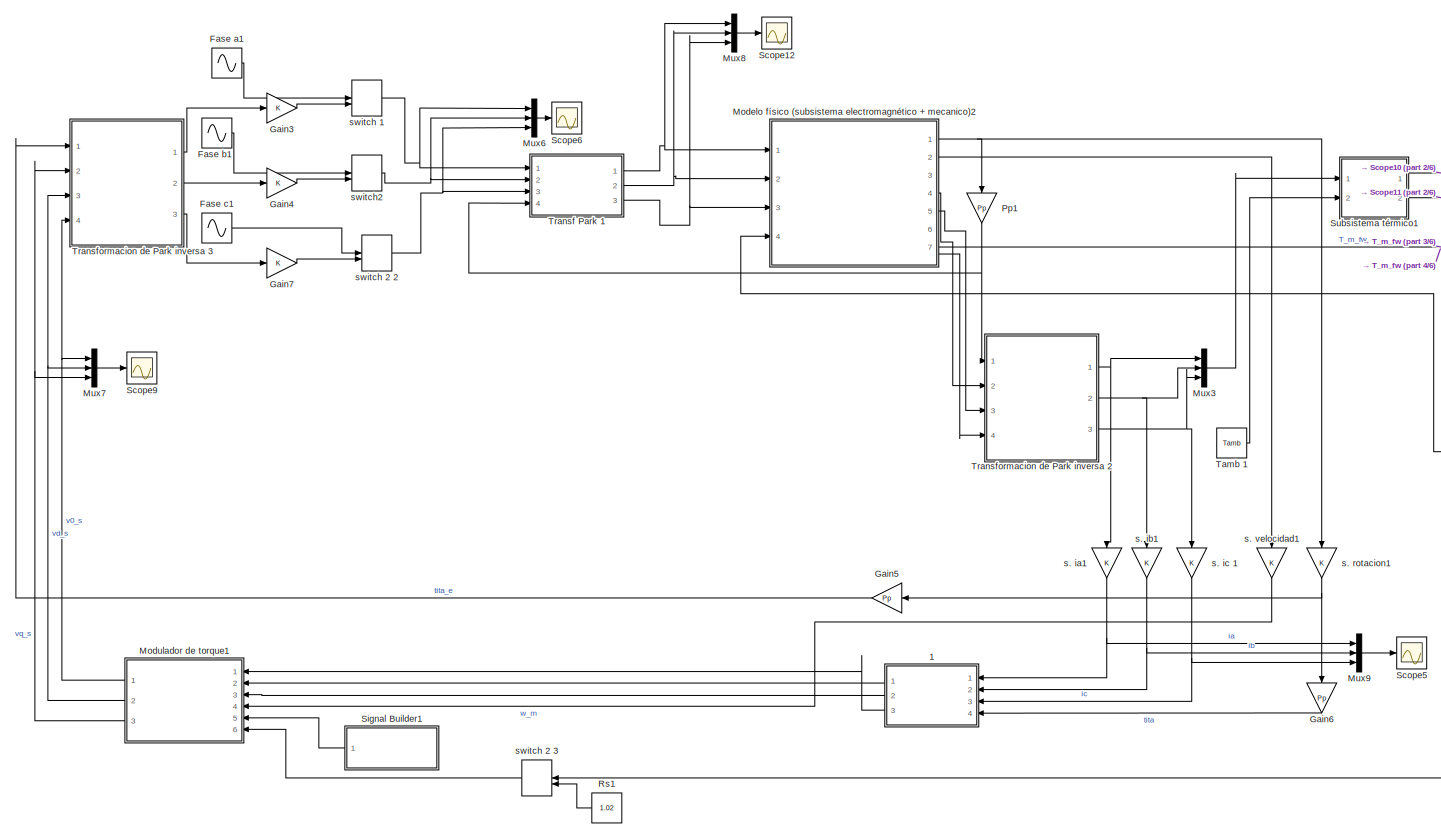
[diagram: root canvas - part 1/6, full width, top band]
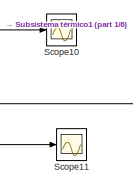
[diagram: root canvas - part 2/6, top right region]
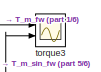
[diagram: root canvas - part 3/6, middle right region]
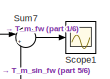
[diagram: root canvas - part 4/6, middle right region]
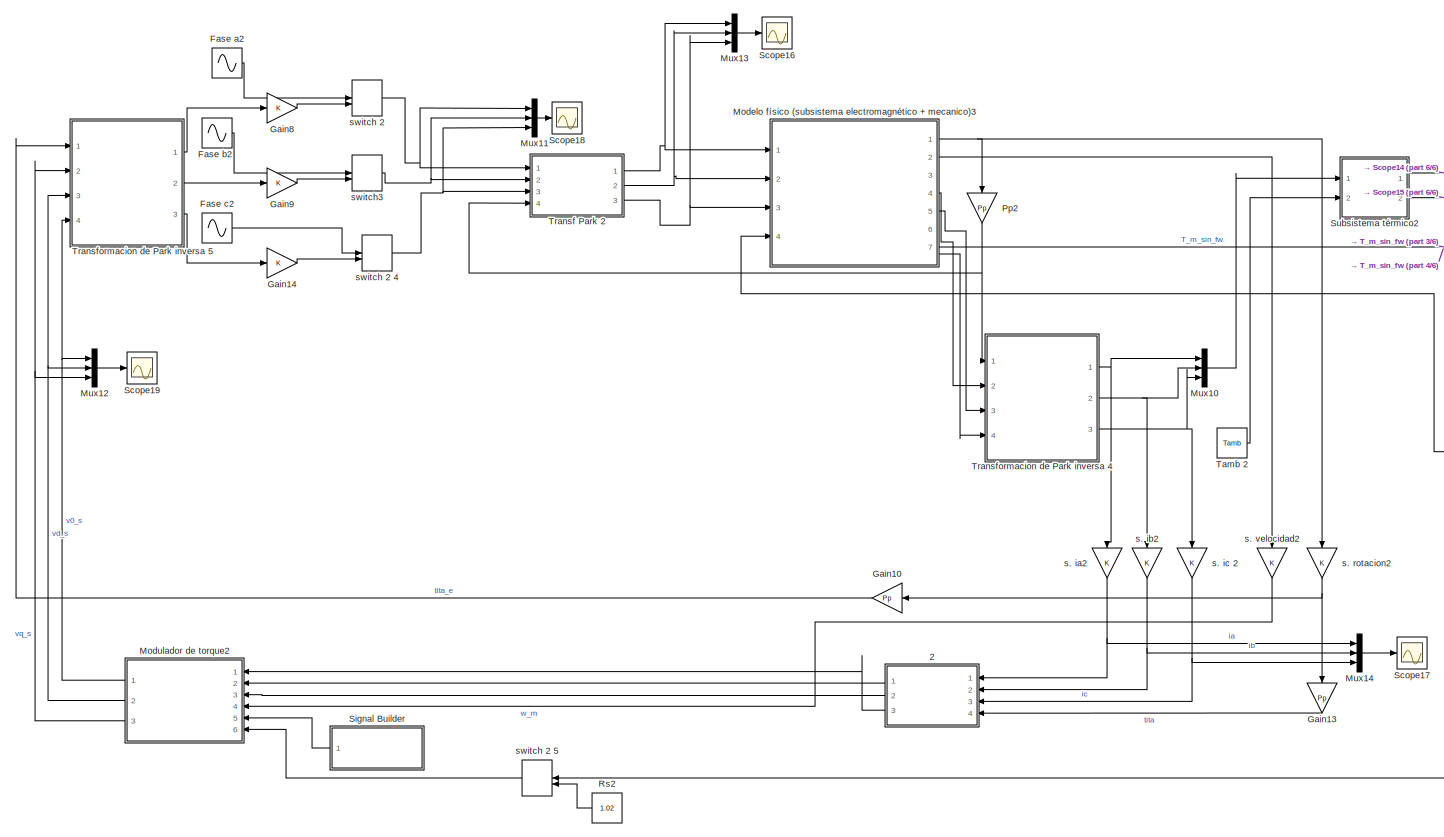
[diagram: root canvas - part 5/6, full width, bottom band]
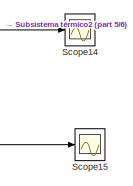
[diagram: root canvas - part 6/6, bottom right region]
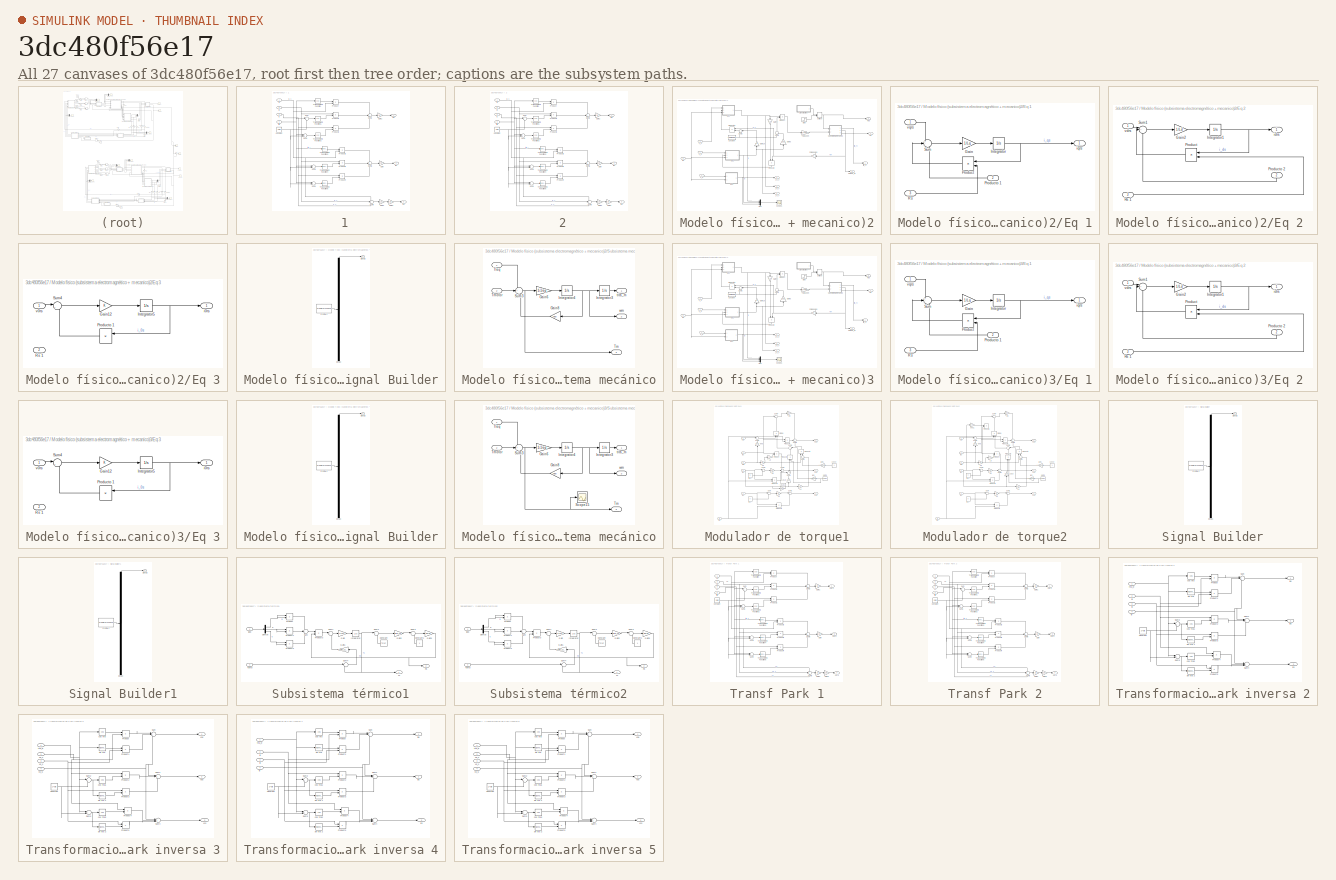
[diagram: thumbnail index - all 27 canvases of the model, root first then tree order]
MODEL slx_3dc480f56e17
KIND model
CONFIG AbsTol = auto
CONFIG EnableMultiTasking = off
CONFIG FixedStep = auto
CONFIG MaxStep = 1e-4
CONFIG MinStep = auto
CONFIG RelTol = 1e-3
CONFIG SampleTimeConstraint = Unconstrained
CONFIG Solver = VariableStepAuto
CONFIG SolverName = VariableStepAuto
CONFIG StartTime = 0.0
CONFIG StopTime = 1
BLOCK [SubSystem]  1
  Ports = [4, 3]
  RequestExecContextInheritance = off
  Variant = off
BLOCK [Constant]  1/Constant
  Value = 2*pi/3
BLOCK [Gain]  1/Gain
  Gain = 2/3
  OutDataTypeStr = Inherit: Inherit via internal rule
  ParamDataTypeStr = Inherit: Inherit via internal rule
  SaturateOnIntegerOverflow = off
BLOCK [Gain]  1/Gain1
  Gain = 2/3
  OutDataTypeStr = Inherit: Inherit via internal rule
  ParamDataTypeStr = Inherit: Inherit via internal rule
  SaturateOnIntegerOverflow = off
BLOCK [Gain]  1/Gain2
  Gain = 1/2
  OutDataTypeStr = Inherit: Inherit via internal rule
  ParamDataTypeStr = Inherit: Inherit via internal rule
  SaturateOnIntegerOverflow = off
BLOCK [Gain]  1/Gain3
  Gain = 2/3
  OutDataTypeStr = Inherit: Inherit via internal rule
  ParamDataTypeStr = Inherit: Inherit via internal rule
  SaturateOnIntegerOverflow = off
BLOCK [Product]  1/Product
  InputSameDT = off
  OutDataTypeStr = Inherit: Inherit via internal rule
  Ports = [2, 1]
  RndMeth = Floor
  SaturateOnIntegerOverflow = off
BLOCK [Product]  1/Product1
  InputSameDT = off
  OutDataTypeStr = Inherit: Inherit via internal rule
  Ports = [2, 1]
  RndMeth = Floor
  SaturateOnIntegerOverflow = off
BLOCK [Product]  1/Product2
  InputSameDT = off
  OutDataTypeStr = Inherit: Inherit via internal rule
  Ports = [2, 1]
  RndMeth = Floor
  SaturateOnIntegerOverflow = off
BLOCK [Product]  1/Product3
  InputSameDT = off
  OutDataTypeStr = Inherit: Inherit via internal rule
  Ports = [2, 1]
  RndMeth = Floor
  SaturateOnIntegerOverflow = off
BLOCK [Product]  1/Product4
  InputSameDT = off
  OutDataTypeStr = Inherit: Inherit via internal rule
  Ports = [2, 1]
  RndMeth = Floor
  SaturateOnIntegerOverflow = off
BLOCK [Product]  1/Product5
  InputSameDT = off
  OutDataTypeStr = Inherit: Inherit via internal rule
  Ports = [2, 1]
  RndMeth = Floor
  SaturateOnIntegerOverflow = off
BLOCK [Sum]  1/Sum
  IconShape = round
  InputSameDT = off
  Inputs = |+-
  OutDataTypeStr = Inherit: Inherit via internal rule
  Ports = [2, 1]
  SaturateOnIntegerOverflow = off
BLOCK [Sum]  1/Sum1
  IconShape = round
  InputSameDT = off
  Inputs = |++
  OutDataTypeStr = Inherit: Inherit via internal rule
  Ports = [2, 1]
  SaturateOnIntegerOverflow = off
BLOCK [Sum]  1/Sum2
  IconShape = round
  InputSameDT = off
  Inputs = +++
  OutDataTypeStr = Inherit: Inherit via internal rule
  Ports = [3, 1]
  SaturateOnIntegerOverflow = off
BLOCK [Sum]  1/Sum3
  IconShape = round
  InputSameDT = off
  Inputs = |+-
  OutDataTypeStr = Inherit: Inherit via internal rule
  Ports = [2, 1]
  SaturateOnIntegerOverflow = off
BLOCK [Sum]  1/Sum4
  IconShape = round
  InputSameDT = off
  Inputs = |++
  OutDataTypeStr = Inherit: Inherit via internal rule
  Ports = [2, 1]
  SaturateOnIntegerOverflow = off
BLOCK [Sum]  1/Sum5
  IconShape = round
  InputSameDT = off
  Inputs = +++
  OutDataTypeStr = Inherit: Inherit via internal rule
  Ports = [3, 1]
  SaturateOnIntegerOverflow = off
BLOCK [Sum]  1/Sum6
  IconShape = round
  InputSameDT = off
  Inputs = +++
  OutDataTypeStr = Inherit: Inherit via internal rule
  Ports = [3, 1]
  SaturateOnIntegerOverflow = off
BLOCK [Trigonometry]  1/Trigonometric Function
  Operator = cos
  Ports = [1, 1]
BLOCK [Trigonometry]  1/Trigonometric Function1
  Operator = cos
  Ports = [1, 1]
BLOCK [Trigonometry]  1/Trigonometric Function2
  Operator = cos
  Ports = [1, 1]
BLOCK [Trigonometry]  1/Trigonometric Function3
  Ports = [1, 1]
BLOCK [Trigonometry]  1/Trigonometric Function4
  Ports = [1, 1]
BLOCK [Trigonometry]  1/Trigonometric Function5
  Ports = [1, 1]
BLOCK [Outport]  1/i0s 
  IconDisplay = Port number
  Port = 3
BLOCK [Inport]  1/ia 
  IconDisplay = Port number
BLOCK [Inport]  1/ib 
  IconDisplay = Port number
  Port = 2
BLOCK [Inport]  1/ic 
  IconDisplay = Port number
  Port = 3
BLOCK [Outport]  1/ids 
  IconDisplay = Port number
  Port = 2
BLOCK [Outport]  1/iqs
  IconDisplay = Port number
BLOCK [Inport]  1/tita 
  IconDisplay = Port number
  Port = 4
BLOCK [SubSystem]  2
  Ports = [4, 3]
  RequestExecContextInheritance = off
  Variant = off
BLOCK [Constant]  2/Constant
  Value = 2*pi/3
BLOCK [Gain]  2/Gain
  Gain = 2/3
  OutDataTypeStr = Inherit: Inherit via internal rule
  ParamDataTypeStr = Inherit: Inherit via internal rule
  SaturateOnIntegerOverflow = off
BLOCK [Gain]  2/Gain1
  Gain = 2/3
  OutDataTypeStr = Inherit: Inherit via internal rule
  ParamDataTypeStr = Inherit: Inherit via internal rule
  SaturateOnIntegerOverflow = off
BLOCK [Gain]  2/Gain2
  Gain = 1/2
  OutDataTypeStr = Inherit: Inherit via internal rule
  ParamDataTypeStr = Inherit: Inherit via internal rule
  SaturateOnIntegerOverflow = off
BLOCK [Gain]  2/Gain3
  Gain = 2/3
  OutDataTypeStr = Inherit: Inherit via internal rule
  ParamDataTypeStr = Inherit: Inherit via internal rule
  SaturateOnIntegerOverflow = off
BLOCK [Product]  2/Product
  InputSameDT = off
  OutDataTypeStr = Inherit: Inherit via internal rule
  Ports = [2, 1]
  RndMeth = Floor
  SaturateOnIntegerOverflow = off
BLOCK [Product]  2/Product1
  InputSameDT = off
  OutDataTypeStr = Inherit: Inherit via internal rule
  Ports = [2, 1]
  RndMeth = Floor
  SaturateOnIntegerOverflow = off
BLOCK [Product]  2/Product2
  InputSameDT = off
  OutDataTypeStr = Inherit: Inherit via internal rule
  Ports = [2, 1]
  RndMeth = Floor
  SaturateOnIntegerOverflow = off
BLOCK [Product]  2/Product3
  InputSameDT = off
  OutDataTypeStr = Inherit: Inherit via internal rule
  Ports = [2, 1]
  RndMeth = Floor
  SaturateOnIntegerOverflow = off
BLOCK [Product]  2/Product4
  InputSameDT = off
  OutDataTypeStr = Inherit: Inherit via internal rule
  Ports = [2, 1]
  RndMeth = Floor
  SaturateOnIntegerOverflow = off
BLOCK [Product]  2/Product5
  InputSameDT = off
  OutDataTypeStr = Inherit: Inherit via internal rule
  Ports = [2, 1]
  RndMeth = Floor
  SaturateOnIntegerOverflow = off
BLOCK [Sum]  2/Sum
  IconShape = round
  InputSameDT = off
  Inputs = |+-
  OutDataTypeStr = Inherit: Inherit via internal rule
  Ports = [2, 1]
  SaturateOnIntegerOverflow = off
BLOCK [Sum]  2/Sum1
  IconShape = round
  InputSameDT = off
  Inputs = |++
  OutDataTypeStr = Inherit: Inherit via internal rule
  Ports = [2, 1]
  SaturateOnIntegerOverflow = off
BLOCK [Sum]  2/Sum2
  IconShape = round
  InputSameDT = off
  Inputs = +++
  OutDataTypeStr = Inherit: Inherit via internal rule
  Ports = [3, 1]
  SaturateOnIntegerOverflow = off
BLOCK [Sum]  2/Sum3
  IconShape = round
  InputSameDT = off
  Inputs = |+-
  OutDataTypeStr = Inherit: Inherit via internal rule
  Ports = [2, 1]
  SaturateOnIntegerOverflow = off
BLOCK [Sum]  2/Sum4
  IconShape = round
  InputSameDT = off
  Inputs = |++
  OutDataTypeStr = Inherit: Inherit via internal rule
  Ports = [2, 1]
  SaturateOnIntegerOverflow = off
BLOCK [Sum]  2/Sum5
  IconShape = round
  InputSameDT = off
  Inputs = +++
  OutDataTypeStr = Inherit: Inherit via internal rule
  Ports = [3, 1]
  SaturateOnIntegerOverflow = off
BLOCK [Sum]  2/Sum6
  IconShape = round
  InputSameDT = off
  Inputs = +++
  OutDataTypeStr = Inherit: Inherit via internal rule
  Ports = [3, 1]
  SaturateOnIntegerOverflow = off
BLOCK [Trigonometry]  2/Trigonometric Function
  Operator = cos
  Ports = [1, 1]
BLOCK [Trigonometry]  2/Trigonometric Function1
  Operator = cos
  Ports = [1, 1]
BLOCK [Trigonometry]  2/Trigonometric Function2
  Operator = cos
  Ports = [1, 1]
BLOCK [Trigonometry]  2/Trigonometric Function3
  Ports = [1, 1]
BLOCK [Trigonometry]  2/Trigonometric Function4
  Ports = [1, 1]
BLOCK [Trigonometry]  2/Trigonometric Function5
  Ports = [1, 1]
BLOCK [Outport]  2/i0s 
  IconDisplay = Port number
  Port = 3
BLOCK [Inport]  2/ia 
  IconDisplay = Port number
BLOCK [Inport]  2/ib 
  IconDisplay = Port number
  Port = 2
BLOCK [Inport]  2/ic 
  IconDisplay = Port number
  Port = 3
BLOCK [Outport]  2/ids 
  IconDisplay = Port number
  Port = 2
BLOCK [Outport]  2/iqs
  IconDisplay = Port number
BLOCK [Inport]  2/tita 
  IconDisplay = Port number
  Port = 4
BLOCK [Sin] Fase a1
  Ports = [0, 1]
  SampleTime = 0
BLOCK [Sin] Fase a2
  Ports = [0, 1]
  SampleTime = 0
BLOCK [Sin] Fase b1
  Ports = [0, 1]
  SampleTime = 0
BLOCK [Sin] Fase b2
  Ports = [0, 1]
  SampleTime = 0
BLOCK [Sin] Fase c1
  Ports = [0, 1]
  SampleTime = 0
BLOCK [Sin] Fase c2
  Ports = [0, 1]
  SampleTime = 0
BLOCK [Gain] Gain10
  Gain = Pp
  OutDataTypeStr = Inherit: Inherit via internal rule
  ParamDataTypeStr = Inherit: Inherit via internal rule
  SaturateOnIntegerOverflow = off
BLOCK [Gain] Gain13
  Gain = Pp
  OutDataTypeStr = Inherit: Inherit via internal rule
  ParamDataTypeStr = Inherit: Inherit via internal rule
  SaturateOnIntegerOverflow = off
BLOCK [Gain] Gain14
  OutDataTypeStr = Inherit: Inherit via internal rule
  ParamDataTypeStr = Inherit: Inherit via internal rule
  SaturateOnIntegerOverflow = off
BLOCK [Gain] Gain3
  OutDataTypeStr = Inherit: Inherit via internal rule
  ParamDataTypeStr = Inherit: Inherit via internal rule
  SaturateOnIntegerOverflow = off
BLOCK [Gain] Gain4
  OutDataTypeStr = Inherit: Inherit via internal rule
  ParamDataTypeStr = Inherit: Inherit via internal rule
  SaturateOnIntegerOverflow = off
BLOCK [Gain] Gain5
  Gain = Pp
  OutDataTypeStr = Inherit: Inherit via internal rule
  ParamDataTypeStr = Inherit: Inherit via internal rule
  SaturateOnIntegerOverflow = off
BLOCK [Gain] Gain6
  Gain = Pp
  OutDataTypeStr = Inherit: Inherit via internal rule
  ParamDataTypeStr = Inherit: Inherit via internal rule
  SaturateOnIntegerOverflow = off
BLOCK [Gain] Gain7
  OutDataTypeStr = Inherit: Inherit via internal rule
  ParamDataTypeStr = Inherit: Inherit via internal rule
  SaturateOnIntegerOverflow = off
BLOCK [Gain] Gain8
  OutDataTypeStr = Inherit: Inherit via internal rule
  ParamDataTypeStr = Inherit: Inherit via internal rule
  SaturateOnIntegerOverflow = off
BLOCK [Gain] Gain9
  OutDataTypeStr = Inherit: Inherit via internal rule
  ParamDataTypeStr = Inherit: Inherit via internal rule
  SaturateOnIntegerOverflow = off
BLOCK [SubSystem] Modelo físico (subsistema electromagnético + mecanico)2
  Ports = [4, 7]
  RequestExecContextInheritance = off
  Variant = off
BLOCK [Constant] Modelo físico (subsistema electromagnético + mecanico)2/Constant
  Value = LambdaM
BLOCK [SubSystem] Modelo físico (subsistema electromagnético + mecanico)2/Eq 1
  Ports = [3, 1]
  RequestExecContextInheritance = off
  Variant = off
BLOCK [Gain] Modelo físico (subsistema electromagnético + mecanico)2/Eq 1/Gain
  Gain = 1/Lq
  OutDataTypeStr = Inherit: Inherit via internal rule
  ParamDataTypeStr = Inherit: Inherit via internal rule
  SaturateOnIntegerOverflow = off
BLOCK [Integrator] Modelo físico (subsistema electromagnético + mecanico)2/Eq 1/Integrator
  Ports = [1, 1]
BLOCK [Product] Modelo físico (subsistema electromagnético + mecanico)2/Eq 1/Product
  InputSameDT = off
  OutDataTypeStr = Inherit: Inherit via internal rule
  Ports = [2, 1]
  RndMeth = Floor
  SaturateOnIntegerOverflow = off
BLOCK [Inport] Modelo físico (subsistema electromagnético + mecanico)2/Eq 1/Producto 1 
  IconDisplay = Port number
  Port = 2
BLOCK [Inport] Modelo físico (subsistema electromagnético + mecanico)2/Eq 1/Rs
  IconDisplay = Port number
  Port = 3
BLOCK [Sum] Modelo físico (subsistema electromagnético + mecanico)2/Eq 1/Sum
  IconShape = round
  InputSameDT = off
  Inputs = +--
  OutDataTypeStr = Inherit: Inherit via internal rule
  Ports = [3, 1]
  SaturateOnIntegerOverflow = off
BLOCK [Outport] Modelo físico (subsistema electromagnético + mecanico)2/Eq 1/iqrs 
  IconDisplay = Port number
BLOCK [Inport] Modelo físico (subsistema electromagnético + mecanico)2/Eq 1/vqrs
  IconDisplay = Port number
BLOCK [SubSystem] Modelo físico (subsistema electromagnético + mecanico)2/Eq 2 
  Ports = [3, 1]
  RequestExecContextInheritance = off
  Variant = off
BLOCK [Gain] Modelo físico (subsistema electromagnético + mecanico)2/Eq 2 /Gain2
  Gain = 1/Ld
  OutDataTypeStr = Inherit: Inherit via internal rule
  ParamDataTypeStr = Inherit: Inherit via internal rule
  SaturateOnIntegerOverflow = off
BLOCK [Integrator] Modelo físico (subsistema electromagnético + mecanico)2/Eq 2 /Integrator1
  Ports = [1, 1]
BLOCK [Product] Modelo físico (subsistema electromagnético + mecanico)2/Eq 2 /Product
  InputSameDT = off
  OutDataTypeStr = Inherit: Inherit via internal rule
  Ports = [2, 1]
  RndMeth = Floor
  SaturateOnIntegerOverflow = off
BLOCK [Inport] Modelo físico (subsistema electromagnético + mecanico)2/Eq 2 /Producto 2 
  IconDisplay = Port number
  Port = 2
BLOCK [Inport] Modelo físico (subsistema electromagnético + mecanico)2/Eq 2 /Rs 1
  IconDisplay = Port number
  Port = 3
BLOCK [Sum] Modelo físico (subsistema electromagnético + mecanico)2/Eq 2 /Sum1
  IconShape = round
  InputSameDT = off
  Inputs = |+-+
  OutDataTypeStr = Inherit: Inherit via internal rule
  Ports = [3, 1]
  SaturateOnIntegerOverflow = off
BLOCK [Outport] Modelo físico (subsistema electromagnético + mecanico)2/Eq 2 /idrs 
  IconDisplay = Port number
BLOCK [Inport] Modelo físico (subsistema electromagnético + mecanico)2/Eq 2 /vdrs 
  IconDisplay = Port number
BLOCK [SubSystem] Modelo físico (subsistema electromagnético + mecanico)2/Eq 3
  Ports = [2, 1]
  RequestExecContextInheritance = off
  Variant = off
BLOCK [Gain] Modelo físico (subsistema electromagnético + mecanico)2/Eq 3/Gain12
  OutDataTypeStr = Inherit: Inherit via internal rule
  ParamDataTypeStr = Inherit: Inherit via internal rule
  SaturateOnIntegerOverflow = off
BLOCK [Integrator] Modelo físico (subsistema electromagnético + mecanico)2/Eq 3/Integrator5
  Ports = [1, 1]
BLOCK [Product] Modelo físico (subsistema electromagnético + mecanico)2/Eq 3/Producto 1
  InputSameDT = off
  OutDataTypeStr = Inherit: Inherit via internal rule
  Ports = [2, 1]
  RndMeth = Floor
  SaturateOnIntegerOverflow = off
BLOCK [Inport] Modelo físico (subsistema electromagnético + mecanico)2/Eq 3/Rs 1
  IconDisplay = Port number
  Port = 2
BLOCK [Sum] Modelo físico (subsistema electromagnético + mecanico)2/Eq 3/Sum4
  IconShape = round
  InputSameDT = off
  Inputs = |++
  OutDataTypeStr = Inherit: Inherit via internal rule
  Ports = [2, 1]
  SaturateOnIntegerOverflow = off
BLOCK [Outport] Modelo físico (subsistema electromagnético + mecanico)2/Eq 3/i0rs 
  IconDisplay = Port number
BLOCK [Inport] Modelo físico (subsistema electromagnético + mecanico)2/Eq 3/v0rs 
  IconDisplay = Port number
BLOCK [Gain] Modelo físico (subsistema electromagnético + mecanico)2/Gain10
  Gain = Ld
  OutDataTypeStr = Inherit: Inherit via internal rule
  ParamDataTypeStr = Inherit: Inherit via internal rule
  SaturateOnIntegerOverflow = off
BLOCK [Gain] Modelo físico (subsistema electromagnético + mecanico)2/Gain3
  Gain = Ld-Lq
  OutDataTypeStr = Inherit: Inherit via internal rule
  ParamDataTypeStr = Inherit: Inherit via internal rule
  SaturateOnIntegerOverflow = off
BLOCK [Gain] Modelo físico (subsistema electromagnético + mecanico)2/Gain4
  Gain = Lq
  OutDataTypeStr = Inherit: Inherit via internal rule
  ParamDataTypeStr = Inherit: Inherit via internal rule
  SaturateOnIntegerOverflow = off
BLOCK [Mux] Modelo físico (subsistema electromagnético + mecanico)2/Mux
  DisplayOption = bar
  Inputs = 3
  Ports = [3, 1]
BLOCK [Gain] Modelo físico (subsistema electromagnético + mecanico)2/Par de polos
  Gain = Pp
  OutDataTypeStr = Inherit: Inherit via internal rule
  ParamDataTypeStr = Inherit: Inherit via internal rule
  SaturateOnIntegerOverflow = off
BLOCK [Product] Modelo físico (subsistema electromagnético + mecanico)2/Product
  InputSameDT = off
  OutDataTypeStr = Inherit: Inherit via internal rule
  Ports = [2, 1]
  RndMeth = Floor
  SaturateOnIntegerOverflow = off
BLOCK [Product] Modelo físico (subsistema electromagnético + mecanico)2/Product2
  InputSameDT = off
  OutDataTypeStr = Inherit: Inherit via internal rule
  Ports = [2, 1]
  RndMeth = Floor
  SaturateOnIntegerOverflow = off
BLOCK [Product] Modelo físico (subsistema electromagnético + mecanico)2/Producto 1
  InputSameDT = off
  OutDataTypeStr = Inherit: Inherit via internal rule
  Ports = [2, 1]
  RndMeth = Floor
  SaturateOnIntegerOverflow = off
BLOCK [Inport] Modelo físico (subsistema electromagnético + mecanico)2/Rs
  IconDisplay = Port number
  Port = 4
BLOCK [Scope] Modelo físico (subsistema electromagnético + mecanico)2/Scope1
  NumInputPorts = 1
  Ports = [1]
  ScopeSpecificationString = Simulink.scopes.TimeScopeBlockCfg('CurrentConfiguration', extmgr.ConfigurationSet(extmgr.Configuration('Core','General UI',true),extmgr.Configuration('Core','Source UI',true),extmgr.Configuration('Sources','WiredSimulink',true,'DataLoggingVariableName','ScopeData5'),extmgr.Configuration('Visuals','Time Domain',true,'SerializedDisplays',{struct('MinYLimReal','-0.51456','MaxYLimReal','0.61273','YLab...<+1864ch>
BLOCK [SubSystem] Modelo físico (subsistema electromagnético + mecanico)2/Signal Builder
  ClipboardFcn = sigbuilder_block('clipboard');
  CloseFcn = sigbuilder_block('close');
  ContinueFcn = sigbuilder_block('continue');
  CopyFcn = sigbuilder_block('copy');
  DeleteFcn = sigbuilder_block('delete');
  LoadFcn = sigbuilder_block('load');
  MaskHideContents = on
  ModelCloseFcn = sigbuilder_block('modelClose');
  NameChangeFcn = sigbuilder_block('namechange');
  OpenFcn = sigbuilder_block('open',[6 30 1012.5 447.75 ]);
  PauseFcn = sigbuilder_block('pause');
  Ports = [0, 1]
  PreSaveFcn = sigbuilder_block('preSave');
  RequestExecContextInheritance = off
  StartFcn = sigbuilder_block('start');
  StopFcn = sigbuilder_block('stop');
  Tag = STV Subsys
  Variant = off
BLOCK [Demux] Modelo físico (subsistema electromagnético + mecanico)2/Signal Builder/Demux
  Outputs = 1
  Ports = [1, 1]
  Tag = STV Demux
BLOCK [FromWorkspace] Modelo físico (subsistema electromagnético + mecanico)2/Signal Builder/FromWs
  SampleTime = 0
  Tag = STV FromWs
  VariableName = tuvar
  ZeroCross = on
BLOCK [Outport] Modelo físico (subsistema electromagnético + mecanico)2/Signal Builder/Signal 2
  IconDisplay = Port number
  Tag = STV Outport
BLOCK [Step] Modelo físico (subsistema electromagnético + mecanico)2/Step
  After = 0
  SampleTime = 0
  Time = 0.3
BLOCK [SubSystem] Modelo físico (subsistema electromagnético + mecanico)2/Subsistema mecánico
  Ports = [2, 3]
  RequestExecContextInheritance = off
  Variant = off
BLOCK [Gain] Modelo físico (subsistema electromagnético + mecanico)2/Subsistema mecánico/Gain6
  Gain = 1/Jeq
  OutDataTypeStr = Inherit: Inherit via internal rule
  ParamDataTypeStr = Inherit: Inherit via internal rule
  SaturateOnIntegerOverflow = off
BLOCK [Gain] Modelo físico (subsistema electromagnético + mecanico)2/Subsistema mecánico/Gain8
  Gain = beq
  OutDataTypeStr = Inherit: Inherit via internal rule
  ParamDataTypeStr = Inherit: Inherit via internal rule
  SaturateOnIntegerOverflow = off
BLOCK [Integrator] Modelo físico (subsistema electromagnético + mecanico)2/Subsistema mecánico/Integrator3
  Ports = [1, 1]
BLOCK [Integrator] Modelo físico (subsistema electromagnético + mecanico)2/Subsistema mecánico/Integrator4
  Ports = [1, 1]
BLOCK [Sum] Modelo físico (subsistema electromagnético + mecanico)2/Subsistema mecánico/Sum3
  IconShape = round
  InputSameDT = off
  Inputs = -+-
  OutDataTypeStr = Inherit: Inherit via internal rule
  Ports = [3, 1]
  SaturateOnIntegerOverflow = off
BLOCK [Inport] Modelo físico (subsistema electromagnético + mecanico)2/Subsistema mecánico/Tleq 
  IconDisplay = Port number
BLOCK [Outport] Modelo físico (subsistema electromagnético + mecanico)2/Subsistema mecánico/Tm
  IconDisplay = Port number
  Port = 3
BLOCK [Inport] Modelo físico (subsistema electromagnético + mecanico)2/Subsistema mecánico/Tmotor 
  IconDisplay = Port number
  Port = 2
BLOCK [Outport] Modelo físico (subsistema electromagnético + mecanico)2/Subsistema mecánico/tita_m 
  IconDisplay = Port number
BLOCK [Outport] Modelo físico (subsistema electromagnético + mecanico)2/Subsistema mecánico/wm 
  IconDisplay = Port number
  Port = 2
BLOCK [Sum] Modelo físico (subsistema electromagnético + mecanico)2/Sum2
  IconShape = round
  InputSameDT = off
  Inputs = |++
  OutDataTypeStr = Inherit: Inherit via internal rule
  Ports = [2, 1]
  SaturateOnIntegerOverflow = off
BLOCK [Sum] Modelo físico (subsistema electromagnético + mecanico)2/Sum5
  IconShape = round
  InputSameDT = off
  Inputs = |++
  OutDataTypeStr = Inherit: Inherit via internal rule
  Ports = [2, 1]
  SaturateOnIntegerOverflow = off
BLOCK [Outport] Modelo físico (subsistema electromagnético + mecanico)2/Tleq
  IconDisplay = Port number
  Port = 3
BLOCK [Outport] Modelo físico (subsistema electromagnético + mecanico)2/Tm
  IconDisplay = Port number
  Port = 7
BLOCK [Gain] Modelo físico (subsistema electromagnético + mecanico)2/Torque em 
  Gain = 3*Pp/2
  OutDataTypeStr = Inherit: Inherit via internal rule
  ParamDataTypeStr = Inherit: Inherit via internal rule
  SaturateOnIntegerOverflow = off
BLOCK [Inport] Modelo físico (subsistema electromagnético + mecanico)2/V_0
  IconDisplay = Port number
  Port = 3
BLOCK [Inport] Modelo físico (subsistema electromagnético + mecanico)2/V_d
  IconDisplay = Port number
  Port = 2
BLOCK [Inport] Modelo físico (subsistema electromagnético + mecanico)2/V_q
  IconDisplay = Port number
BLOCK [Outport] Modelo físico (subsistema electromagnético + mecanico)2/i_0_s 
  IconDisplay = Port number
  Port = 6
BLOCK [Outport] Modelo físico (subsistema electromagnético + mecanico)2/i_d_s 
  IconDisplay = Port number
  Port = 5
BLOCK [Outport] Modelo físico (subsistema electromagnético + mecanico)2/i_q_s 
  IconDisplay = Port number
  Port = 4
BLOCK [Outport] Modelo físico (subsistema electromagnético + mecanico)2/omega_m 
  IconDisplay = Port number
  Port = 2
BLOCK [ManualSwitch] Modelo físico (subsistema electromagnético + mecanico)2/switch 0
  CurrentSetting = 0
BLOCK [Outport] Modelo físico (subsistema electromagnético + mecanico)2/tita_m 
  IconDisplay = Port number
BLOCK [SubSystem] Modelo físico (subsistema electromagnético + mecanico)3
  Ports = [4, 7]
  RequestExecContextInheritance = off
  Variant = off
BLOCK [Constant] Modelo físico (subsistema electromagnético + mecanico)3/Constant
  Value = LambdaM
BLOCK [SubSystem] Modelo físico (subsistema electromagnético + mecanico)3/Eq 1
  Ports = [3, 1]
  RequestExecContextInheritance = off
  Variant = off
BLOCK [Gain] Modelo físico (subsistema electromagnético + mecanico)3/Eq 1/Gain
  Gain = 1/Lq
  OutDataTypeStr = Inherit: Inherit via internal rule
  ParamDataTypeStr = Inherit: Inherit via internal rule
  SaturateOnIntegerOverflow = off
BLOCK [Integrator] Modelo físico (subsistema electromagnético + mecanico)3/Eq 1/Integrator
  Ports = [1, 1]
BLOCK [Product] Modelo físico (subsistema electromagnético + mecanico)3/Eq 1/Product
  InputSameDT = off
  OutDataTypeStr = Inherit: Inherit via internal rule
  Ports = [2, 1]
  RndMeth = Floor
  SaturateOnIntegerOverflow = off
BLOCK [Inport] Modelo físico (subsistema electromagnético + mecanico)3/Eq 1/Producto 1 
  IconDisplay = Port number
  Port = 2
BLOCK [Inport] Modelo físico (subsistema electromagnético + mecanico)3/Eq 1/Rs
  IconDisplay = Port number
  Port = 3
BLOCK [Sum] Modelo físico (subsistema electromagnético + mecanico)3/Eq 1/Sum
  IconShape = round
  InputSameDT = off
  Inputs = +--
  OutDataTypeStr = Inherit: Inherit via internal rule
  Ports = [3, 1]
  SaturateOnIntegerOverflow = off
BLOCK [Outport] Modelo físico (subsistema electromagnético + mecanico)3/Eq 1/iqrs 
  IconDisplay = Port number
BLOCK [Inport] Modelo físico (subsistema electromagnético + mecanico)3/Eq 1/vqrs
  IconDisplay = Port number
BLOCK [SubSystem] Modelo físico (subsistema electromagnético + mecanico)3/Eq 2 
  Ports = [3, 1]
  RequestExecContextInheritance = off
  Variant = off
BLOCK [Gain] Modelo físico (subsistema electromagnético + mecanico)3/Eq 2 /Gain2
  Gain = 1/Ld
  OutDataTypeStr = Inherit: Inherit via internal rule
  ParamDataTypeStr = Inherit: Inherit via internal rule
  SaturateOnIntegerOverflow = off
BLOCK [Integrator] Modelo físico (subsistema electromagnético + mecanico)3/Eq 2 /Integrator1
  Ports = [1, 1]
BLOCK [Product] Modelo físico (subsistema electromagnético + mecanico)3/Eq 2 /Product
  InputSameDT = off
  OutDataTypeStr = Inherit: Inherit via internal rule
  Ports = [2, 1]
  RndMeth = Floor
  SaturateOnIntegerOverflow = off
BLOCK [Inport] Modelo físico (subsistema electromagnético + mecanico)3/Eq 2 /Producto 2 
  IconDisplay = Port number
  Port = 2
BLOCK [Inport] Modelo físico (subsistema electromagnético + mecanico)3/Eq 2 /Rs 1
  IconDisplay = Port number
  Port = 3
BLOCK [Sum] Modelo físico (subsistema electromagnético + mecanico)3/Eq 2 /Sum1
  IconShape = round
  InputSameDT = off
  Inputs = |+-+
  OutDataTypeStr = Inherit: Inherit via internal rule
  Ports = [3, 1]
  SaturateOnIntegerOverflow = off
BLOCK [Outport] Modelo físico (subsistema electromagnético + mecanico)3/Eq 2 /idrs 
  IconDisplay = Port number
BLOCK [Inport] Modelo físico (subsistema electromagnético + mecanico)3/Eq 2 /vdrs 
  IconDisplay = Port number
BLOCK [SubSystem] Modelo físico (subsistema electromagnético + mecanico)3/Eq 3
  Ports = [2, 1]
  RequestExecContextInheritance = off
  Variant = off
BLOCK [Gain] Modelo físico (subsistema electromagnético + mecanico)3/Eq 3/Gain12
  OutDataTypeStr = Inherit: Inherit via internal rule
  ParamDataTypeStr = Inherit: Inherit via internal rule
  SaturateOnIntegerOverflow = off
BLOCK [Integrator] Modelo físico (subsistema electromagnético + mecanico)3/Eq 3/Integrator5
  Ports = [1, 1]
BLOCK [Product] Modelo físico (subsistema electromagnético + mecanico)3/Eq 3/Producto 1
  InputSameDT = off
  OutDataTypeStr = Inherit: Inherit via internal rule
  Ports = [2, 1]
  RndMeth = Floor
  SaturateOnIntegerOverflow = off
BLOCK [Inport] Modelo físico (subsistema electromagnético + mecanico)3/Eq 3/Rs 1
  IconDisplay = Port number
  Port = 2
BLOCK [Sum] Modelo físico (subsistema electromagnético + mecanico)3/Eq 3/Sum4
  IconShape = round
  InputSameDT = off
  Inputs = |++
  OutDataTypeStr = Inherit: Inherit via internal rule
  Ports = [2, 1]
  SaturateOnIntegerOverflow = off
BLOCK [Outport] Modelo físico (subsistema electromagnético + mecanico)3/Eq 3/i0rs 
  IconDisplay = Port number
BLOCK [Inport] Modelo físico (subsistema electromagnético + mecanico)3/Eq 3/v0rs 
  IconDisplay = Port number
BLOCK [Gain] Modelo físico (subsistema electromagnético + mecanico)3/Gain10
  Gain = Ld
  OutDataTypeStr = Inherit: Inherit via internal rule
  ParamDataTypeStr = Inherit: Inherit via internal rule
  SaturateOnIntegerOverflow = off
BLOCK [Gain] Modelo físico (subsistema electromagnético + mecanico)3/Gain3
  Gain = Ld-Lq
  OutDataTypeStr = Inherit: Inherit via internal rule
  ParamDataTypeStr = Inherit: Inherit via internal rule
  SaturateOnIntegerOverflow = off
BLOCK [Gain] Modelo físico (subsistema electromagnético + mecanico)3/Gain4
  Gain = Lq
  OutDataTypeStr = Inherit: Inherit via internal rule
  ParamDataTypeStr = Inherit: Inherit via internal rule
  SaturateOnIntegerOverflow = off
BLOCK [Mux] Modelo físico (subsistema electromagnético + mecanico)3/Mux
  DisplayOption = bar
  Inputs = 3
  Ports = [3, 1]
BLOCK [Gain] Modelo físico (subsistema electromagnético + mecanico)3/Par de polos
  Gain = Pp
  OutDataTypeStr = Inherit: Inherit via internal rule
  ParamDataTypeStr = Inherit: Inherit via internal rule
  SaturateOnIntegerOverflow = off
BLOCK [Product] Modelo físico (subsistema electromagnético + mecanico)3/Product
  InputSameDT = off
  OutDataTypeStr = Inherit: Inherit via internal rule
  Ports = [2, 1]
  RndMeth = Floor
  SaturateOnIntegerOverflow = off
BLOCK [Product] Modelo físico (subsistema electromagnético + mecanico)3/Product2
  InputSameDT = off
  OutDataTypeStr = Inherit: Inherit via internal rule
  Ports = [2, 1]
  RndMeth = Floor
  SaturateOnIntegerOverflow = off
BLOCK [Product] Modelo físico (subsistema electromagnético + mecanico)3/Producto 1
  InputSameDT = off
  OutDataTypeStr = Inherit: Inherit via internal rule
  Ports = [2, 1]
  RndMeth = Floor
  SaturateOnIntegerOverflow = off
BLOCK [Inport] Modelo físico (subsistema electromagnético + mecanico)3/Rs
  IconDisplay = Port number
  Port = 4
BLOCK [Scope] Modelo físico (subsistema electromagnético + mecanico)3/Scope1
  NumInputPorts = 1
  Ports = [1]
  ScopeSpecificationString = Simulink.scopes.TimeScopeBlockCfg('CurrentConfiguration', extmgr.ConfigurationSet(extmgr.Configuration('Core','General UI',true),extmgr.Configuration('Core','Source UI',true),extmgr.Configuration('Sources','WiredSimulink',true,'DataLoggingVariableName','ScopeData5'),extmgr.Configuration('Visuals','Time Domain',true,'SerializedDisplays',{struct('MinYLimReal','-0.05395','MaxYLimReal','0.48552','YLab...<+1831ch>
BLOCK [SubSystem] Modelo físico (subsistema electromagnético + mecanico)3/Signal Builder
  ClipboardFcn = sigbuilder_block('clipboard');
  CloseFcn = sigbuilder_block('close');
  ContinueFcn = sigbuilder_block('continue');
  CopyFcn = sigbuilder_block('copy');
  DeleteFcn = sigbuilder_block('delete');
  LoadFcn = sigbuilder_block('load');
  MaskHideContents = on
  ModelCloseFcn = sigbuilder_block('modelClose');
  NameChangeFcn = sigbuilder_block('namechange');
  OpenFcn = sigbuilder_block('open',[6 30 1012.5 447.75 ]);
  PauseFcn = sigbuilder_block('pause');
  Ports = [0, 1]
  PreSaveFcn = sigbuilder_block('preSave');
  RequestExecContextInheritance = off
  StartFcn = sigbuilder_block('start');
  StopFcn = sigbuilder_block('stop');
  Tag = STV Subsys
  Variant = off
BLOCK [Demux] Modelo físico (subsistema electromagnético + mecanico)3/Signal Builder/Demux
  Outputs = 1
  Ports = [1, 1]
  Tag = STV Demux
BLOCK [FromWorkspace] Modelo físico (subsistema electromagnético + mecanico)3/Signal Builder/FromWs
  SampleTime = 0
  Tag = STV FromWs
  VariableName = tuvar
  ZeroCross = on
BLOCK [Outport] Modelo físico (subsistema electromagnético + mecanico)3/Signal Builder/Signal 2
  IconDisplay = Port number
  Tag = STV Outport
BLOCK [Step] Modelo físico (subsistema electromagnético + mecanico)3/Step
  After = 0
  SampleTime = 0
  Time = 0.3
BLOCK [SubSystem] Modelo físico (subsistema electromagnético + mecanico)3/Subsistema mecánico
  Ports = [2, 3]
  RequestExecContextInheritance = off
  Variant = off
BLOCK [Gain] Modelo físico (subsistema electromagnético + mecanico)3/Subsistema mecánico/Gain6
  Gain = 1/Jeq
  OutDataTypeStr = Inherit: Inherit via internal rule
  ParamDataTypeStr = Inherit: Inherit via internal rule
  SaturateOnIntegerOverflow = off
BLOCK [Gain] Modelo físico (subsistema electromagnético + mecanico)3/Subsistema mecánico/Gain8
  Gain = beq
  OutDataTypeStr = Inherit: Inherit via internal rule
  ParamDataTypeStr = Inherit: Inherit via internal rule
  SaturateOnIntegerOverflow = off
BLOCK [Integrator] Modelo físico (subsistema electromagnético + mecanico)3/Subsistema mecánico/Integrator3
  Ports = [1, 1]
BLOCK [Integrator] Modelo físico (subsistema electromagnético + mecanico)3/Subsistema mecánico/Integrator4
  Ports = [1, 1]
BLOCK [Scope] Modelo físico (subsistema electromagnético + mecanico)3/Subsistema mecánico/Scope15
  NumInputPorts = 1
  Ports = [1]
  ScopeSpecificationString = Simulink.scopes.TimeScopeBlockCfg('CurrentConfiguration', extmgr.ConfigurationSet(extmgr.Configuration('Core','General UI',true),extmgr.Configuration('Core','Source UI',true),extmgr.Configuration('Sources','WiredSimulink',true,'DataLoggingVariableName','ScopeData8'),extmgr.Configuration('Visuals','Time Domain',true,'SerializedDisplays',{struct('MinYLimReal','-0.03023','MaxYLimReal','0.03058','YLab...<+1734ch>
BLOCK [Sum] Modelo físico (subsistema electromagnético + mecanico)3/Subsistema mecánico/Sum3
  IconShape = round
  InputSameDT = off
  Inputs = -+-
  OutDataTypeStr = Inherit: Inherit via internal rule
  Ports = [3, 1]
  SaturateOnIntegerOverflow = off
BLOCK [Inport] Modelo físico (subsistema electromagnético + mecanico)3/Subsistema mecánico/Tleq 
  IconDisplay = Port number
BLOCK [Outport] Modelo físico (subsistema electromagnético + mecanico)3/Subsistema mecánico/Tm
  IconDisplay = Port number
  Port = 3
BLOCK [Inport] Modelo físico (subsistema electromagnético + mecanico)3/Subsistema mecánico/Tmotor 
  IconDisplay = Port number
  Port = 2
BLOCK [Outport] Modelo físico (subsistema electromagnético + mecanico)3/Subsistema mecánico/tita_m 
  IconDisplay = Port number
BLOCK [Outport] Modelo físico (subsistema electromagnético + mecanico)3/Subsistema mecánico/wm 
  IconDisplay = Port number
  Port = 2
BLOCK [Sum] Modelo físico (subsistema electromagnético + mecanico)3/Sum2
  IconShape = round
  InputSameDT = off
  Inputs = |++
  OutDataTypeStr = Inherit: Inherit via internal rule
  Ports = [2, 1]
  SaturateOnIntegerOverflow = off
BLOCK [Sum] Modelo físico (subsistema electromagnético + mecanico)3/Sum5
  IconShape = round
  InputSameDT = off
  Inputs = |++
  OutDataTypeStr = Inherit: Inherit via internal rule
  Ports = [2, 1]
  SaturateOnIntegerOverflow = off
BLOCK [Outport] Modelo físico (subsistema electromagnético + mecanico)3/Tleq
  IconDisplay = Port number
  Port = 3
BLOCK [Outport] Modelo físico (subsistema electromagnético + mecanico)3/Tm
  IconDisplay = Port number
  Port = 7
BLOCK [Gain] Modelo físico (subsistema electromagnético + mecanico)3/Torque em 
  Gain = 3*Pp/2
  OutDataTypeStr = Inherit: Inherit via internal rule
  ParamDataTypeStr = Inherit: Inherit via internal rule
  SaturateOnIntegerOverflow = off
BLOCK [Inport] Modelo físico (subsistema electromagnético + mecanico)3/V_0
  IconDisplay = Port number
  Port = 3
BLOCK [Inport] Modelo físico (subsistema electromagnético + mecanico)3/V_d
  IconDisplay = Port number
  Port = 2
BLOCK [Inport] Modelo físico (subsistema electromagnético + mecanico)3/V_q
  IconDisplay = Port number
BLOCK [Outport] Modelo físico (subsistema electromagnético + mecanico)3/i_0_s 
  IconDisplay = Port number
  Port = 6
BLOCK [Outport] Modelo físico (subsistema electromagnético + mecanico)3/i_d_s 
  IconDisplay = Port number
  Port = 5
BLOCK [Outport] Modelo físico (subsistema electromagnético + mecanico)3/i_q_s 
  IconDisplay = Port number
  Port = 4
BLOCK [Outport] Modelo físico (subsistema electromagnético + mecanico)3/omega_m 
  IconDisplay = Port number
  Port = 2
BLOCK [ManualSwitch] Modelo físico (subsistema electromagnético + mecanico)3/switch 0
  CurrentSetting = 0
BLOCK [Outport] Modelo físico (subsistema electromagnético + mecanico)3/tita_m 
  IconDisplay = Port number
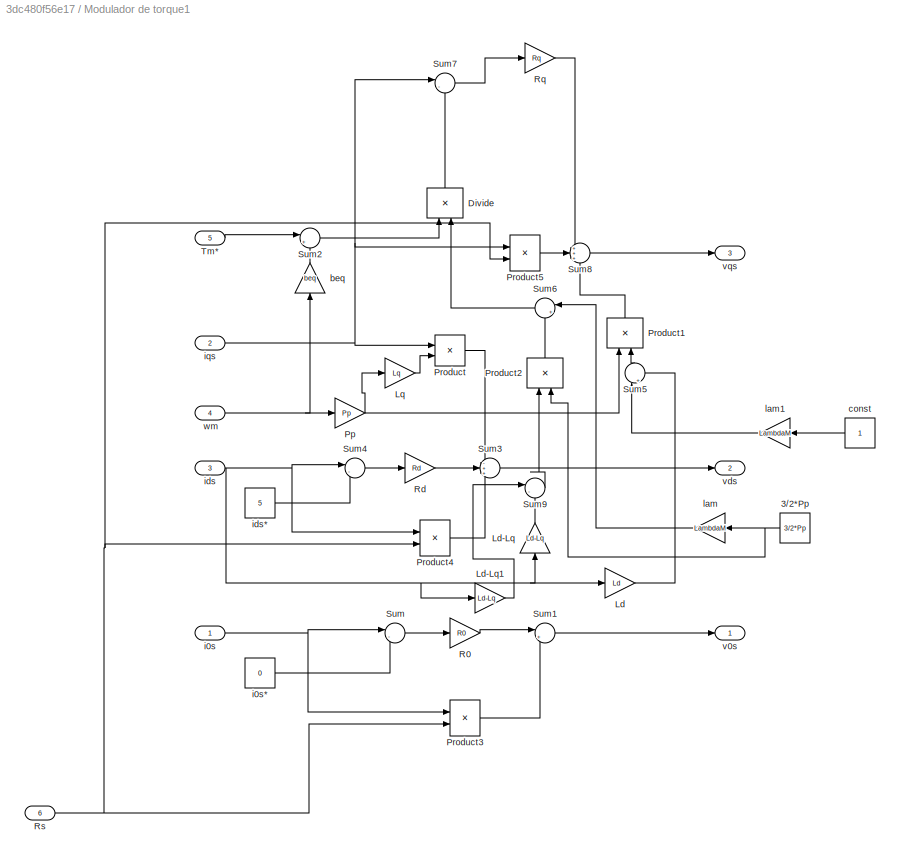
BLOCK [SubSystem] Modulador de torque1
  Ports = [6, 3]
  RequestExecContextInheritance = off
  Variant = off
BLOCK [Constant] Modulador de torque1/3//2*Pp
  Value = 3/2*Pp
BLOCK [Product] Modulador de torque1/Divide
  InputSameDT = off
  Inputs = */
  OutDataTypeStr = Inherit: Inherit via internal rule
  Ports = [2, 1]
  RndMeth = Floor
  SaturateOnIntegerOverflow = off
BLOCK [Gain] Modulador de torque1/Ld
  Gain = Ld
  OutDataTypeStr = Inherit: Inherit via internal rule
  ParamDataTypeStr = Inherit: Inherit via internal rule
  SaturateOnIntegerOverflow = off
BLOCK [Gain] Modulador de torque1/Ld-Lq
  Gain = Ld-Lq
  OutDataTypeStr = Inherit: Inherit via internal rule
  ParamDataTypeStr = Inherit: Inherit via internal rule
  SaturateOnIntegerOverflow = off
BLOCK [Gain] Modulador de torque1/Ld-Lq1
  Gain = Ld-Lq
  OutDataTypeStr = Inherit: Inherit via internal rule
  ParamDataTypeStr = Inherit: Inherit via internal rule
  SaturateOnIntegerOverflow = off
BLOCK [Gain] Modulador de torque1/Lq
  Gain = Lq
  OutDataTypeStr = Inherit: Inherit via internal rule
  ParamDataTypeStr = Inherit: Inherit via internal rule
  SaturateOnIntegerOverflow = off
BLOCK [Gain] Modulador de torque1/Pp
  Gain = Pp
  OutDataTypeStr = Inherit: Inherit via internal rule
  ParamDataTypeStr = Inherit: Inherit via internal rule
  SaturateOnIntegerOverflow = off
BLOCK [Product] Modulador de torque1/Product
  InputSameDT = off
  OutDataTypeStr = Inherit: Inherit via internal rule
  Ports = [2, 1]
  RndMeth = Floor
  SaturateOnIntegerOverflow = off
BLOCK [Product] Modulador de torque1/Product1
  InputSameDT = off
  OutDataTypeStr = Inherit: Inherit via internal rule
  Ports = [2, 1]
  RndMeth = Floor
  SaturateOnIntegerOverflow = off
BLOCK [Product] Modulador de torque1/Product2
  InputSameDT = off
  OutDataTypeStr = Inherit: Inherit via internal rule
  Ports = [2, 1]
  RndMeth = Floor
  SaturateOnIntegerOverflow = off
BLOCK [Product] Modulador de torque1/Product3
  InputSameDT = off
  OutDataTypeStr = Inherit: Inherit via internal rule
  Ports = [2, 1]
  RndMeth = Floor
  SaturateOnIntegerOverflow = off
BLOCK [Product] Modulador de torque1/Product4
  InputSameDT = off
  OutDataTypeStr = Inherit: Inherit via internal rule
  Ports = [2, 1]
  RndMeth = Floor
  SaturateOnIntegerOverflow = off
BLOCK [Product] Modulador de torque1/Product5
  InputSameDT = off
  OutDataTypeStr = Inherit: Inherit via internal rule
  Ports = [2, 1]
  RndMeth = Floor
  SaturateOnIntegerOverflow = off
BLOCK [Gain] Modulador de torque1/R0
  Gain = R0
  OutDataTypeStr = Inherit: Inherit via internal rule
  ParamDataTypeStr = Inherit: Inherit via internal rule
  SaturateOnIntegerOverflow = off
BLOCK [Gain] Modulador de torque1/Rd
  Gain = Rd
  OutDataTypeStr = Inherit: Inherit via internal rule
  ParamDataTypeStr = Inherit: Inherit via internal rule
  SaturateOnIntegerOverflow = off
BLOCK [Gain] Modulador de torque1/Rq
  Gain = Rq
  OutDataTypeStr = Inherit: Inherit via internal rule
  ParamDataTypeStr = Inherit: Inherit via internal rule
  SaturateOnIntegerOverflow = off
BLOCK [Inport] Modulador de torque1/Rs
  IconDisplay = Port number
  Port = 6
BLOCK [Sum] Modulador de torque1/Sum
  IconShape = round
  InputSameDT = off
  Inputs = |-+
  OutDataTypeStr = Inherit: Inherit via internal rule
  Ports = [2, 1]
  SaturateOnIntegerOverflow = off
BLOCK [Sum] Modulador de torque1/Sum1
  IconShape = round
  InputSameDT = off
  Inputs = |++
  OutDataTypeStr = Inherit: Inherit via internal rule
  Ports = [2, 1]
  SaturateOnIntegerOverflow = off
BLOCK [Sum] Modulador de torque1/Sum2
  IconShape = round
  InputSameDT = off
  Inputs = |++
  OutDataTypeStr = Inherit: Inherit via internal rule
  Ports = [2, 1]
  SaturateOnIntegerOverflow = off
BLOCK [Sum] Modulador de torque1/Sum3
  IconShape = round
  InputSameDT = off
  Inputs = -++
  OutDataTypeStr = Inherit: Inherit via internal rule
  Ports = [3, 1]
  SaturateOnIntegerOverflow = off
BLOCK [Sum] Modulador de torque1/Sum4
  IconShape = round
  InputSameDT = off
  Inputs = |-+
  OutDataTypeStr = Inherit: Inherit via internal rule
  Ports = [2, 1]
  SaturateOnIntegerOverflow = off
BLOCK [Sum] Modulador de torque1/Sum5
  IconShape = round
  InputSameDT = off
  Inputs = |++
  OutDataTypeStr = Inherit: Inherit via internal rule
  Ports = [2, 1]
  SaturateOnIntegerOverflow = off
BLOCK [Sum] Modulador de torque1/Sum6
  IconShape = round
  InputSameDT = off
  Inputs = |++
  OutDataTypeStr = Inherit: Inherit via internal rule
  Ports = [2, 1]
  SaturateOnIntegerOverflow = off
BLOCK [Sum] Modulador de torque1/Sum7
  IconShape = round
  InputSameDT = off
  Inputs = |-+
  OutDataTypeStr = Inherit: Inherit via internal rule
  Ports = [2, 1]
  SaturateOnIntegerOverflow = off
BLOCK [Sum] Modulador de torque1/Sum8
  IconShape = round
  InputSameDT = off
  Inputs = +++
  OutDataTypeStr = Inherit: Inherit via internal rule
  Ports = [3, 1]
  SaturateOnIntegerOverflow = off
BLOCK [Sum] Modulador de torque1/Sum9
  IconShape = round
  InputSameDT = off
  Inputs = |-+
  OutDataTypeStr = Inherit: Inherit via internal rule
  Ports = [2, 1]
  SaturateOnIntegerOverflow = off
BLOCK [Inport] Modulador de torque1/Tm*
  IconDisplay = Port number
  Port = 5
BLOCK [Gain] Modulador de torque1/beq
  Gain = beq
  OutDataTypeStr = Inherit: Inherit via internal rule
  ParamDataTypeStr = Inherit: Inherit via internal rule
  SaturateOnIntegerOverflow = off
BLOCK [Constant] Modulador de torque1/const
BLOCK [Inport] Modulador de torque1/i0s
  IconDisplay = Port number
BLOCK [Constant] Modulador de torque1/i0s*
  Value = 0
BLOCK [Inport] Modulador de torque1/ids
  IconDisplay = Port number
  Port = 3
BLOCK [Constant] Modulador de torque1/ids*
  Value = 5
BLOCK [Inport] Modulador de torque1/iqs
  IconDisplay = Port number
  Port = 2
BLOCK [Gain] Modulador de torque1/lam
  Gain = LambdaM
  OutDataTypeStr = Inherit: Inherit via internal rule
  ParamDataTypeStr = Inherit: Inherit via internal rule
  SaturateOnIntegerOverflow = off
BLOCK [Gain] Modulador de torque1/lam1
  Gain = LambdaM
  OutDataTypeStr = Inherit: Inherit via internal rule
  ParamDataTypeStr = Inherit: Inherit via internal rule
  SaturateOnIntegerOverflow = off
BLOCK [Outport] Modulador de torque1/v0s
  IconDisplay = Port number
BLOCK [Outport] Modulador de torque1/vds
  IconDisplay = Port number
  Port = 2
BLOCK [Outport] Modulador de torque1/vqs
  IconDisplay = Port number
  Port = 3
BLOCK [Inport] Modulador de torque1/wm
  IconDisplay = Port number
  Port = 4
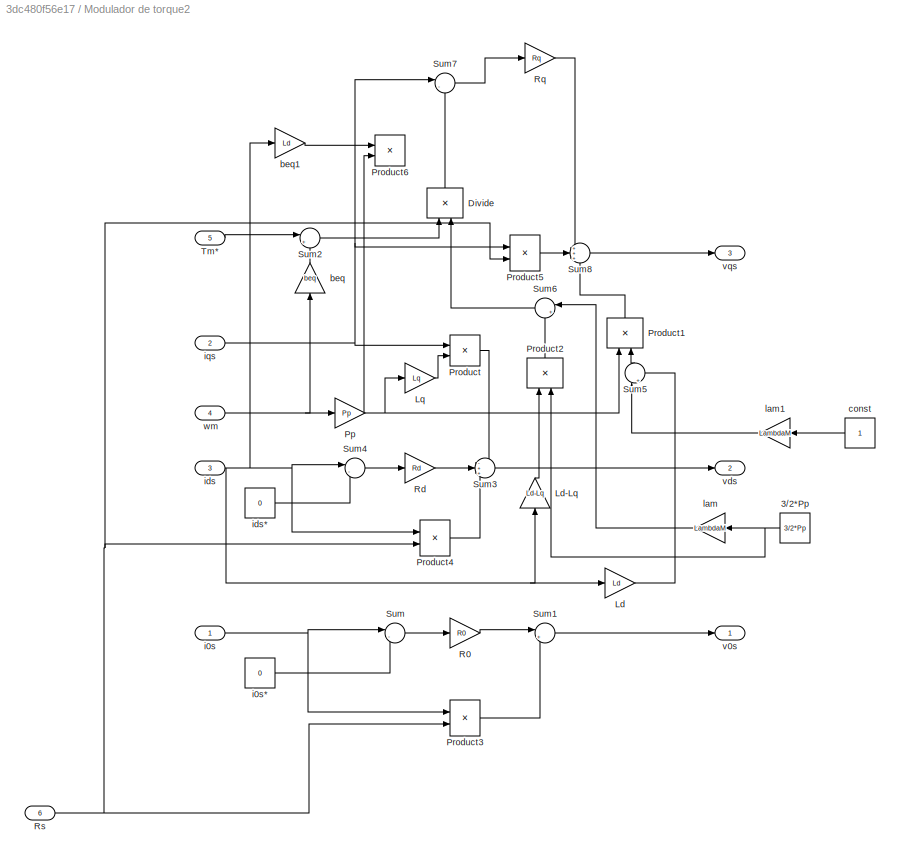
BLOCK [SubSystem] Modulador de torque2
  Ports = [6, 3]
  RequestExecContextInheritance = off
  Variant = off
BLOCK [Constant] Modulador de torque2/3//2*Pp
  Value = 3/2*Pp
BLOCK [Product] Modulador de torque2/Divide
  InputSameDT = off
  Inputs = */
  OutDataTypeStr = Inherit: Inherit via internal rule
  Ports = [2, 1]
  RndMeth = Floor
  SaturateOnIntegerOverflow = off
BLOCK [Gain] Modulador de torque2/Ld
  Gain = Ld
  OutDataTypeStr = Inherit: Inherit via internal rule
  ParamDataTypeStr = Inherit: Inherit via internal rule
  SaturateOnIntegerOverflow = off
BLOCK [Gain] Modulador de torque2/Ld-Lq
  Gain = Ld-Lq
  OutDataTypeStr = Inherit: Inherit via internal rule
  ParamDataTypeStr = Inherit: Inherit via internal rule
  SaturateOnIntegerOverflow = off
BLOCK [Gain] Modulador de torque2/Lq
  Gain = Lq
  OutDataTypeStr = Inherit: Inherit via internal rule
  ParamDataTypeStr = Inherit: Inherit via internal rule
  SaturateOnIntegerOverflow = off
BLOCK [Gain] Modulador de torque2/Pp
  Gain = Pp
  OutDataTypeStr = Inherit: Inherit via internal rule
  ParamDataTypeStr = Inherit: Inherit via internal rule
  SaturateOnIntegerOverflow = off
BLOCK [Product] Modulador de torque2/Product
  InputSameDT = off
  OutDataTypeStr = Inherit: Inherit via internal rule
  Ports = [2, 1]
  RndMeth = Floor
  SaturateOnIntegerOverflow = off
BLOCK [Product] Modulador de torque2/Product1
  InputSameDT = off
  OutDataTypeStr = Inherit: Inherit via internal rule
  Ports = [2, 1]
  RndMeth = Floor
  SaturateOnIntegerOverflow = off
BLOCK [Product] Modulador de torque2/Product2
  InputSameDT = off
  OutDataTypeStr = Inherit: Inherit via internal rule
  Ports = [2, 1]
  RndMeth = Floor
  SaturateOnIntegerOverflow = off
BLOCK [Product] Modulador de torque2/Product3
  InputSameDT = off
  OutDataTypeStr = Inherit: Inherit via internal rule
  Ports = [2, 1]
  RndMeth = Floor
  SaturateOnIntegerOverflow = off
BLOCK [Product] Modulador de torque2/Product4
  InputSameDT = off
  OutDataTypeStr = Inherit: Inherit via internal rule
  Ports = [2, 1]
  RndMeth = Floor
  SaturateOnIntegerOverflow = off
BLOCK [Product] Modulador de torque2/Product5
  InputSameDT = off
  OutDataTypeStr = Inherit: Inherit via internal rule
  Ports = [2, 1]
  RndMeth = Floor
  SaturateOnIntegerOverflow = off
BLOCK [Product] Modulador de torque2/Product6
  InputSameDT = off
  OutDataTypeStr = Inherit: Inherit via internal rule
  Ports = [2, 1]
  RndMeth = Floor
  SaturateOnIntegerOverflow = off
BLOCK [Gain] Modulador de torque2/R0
  Gain = R0
  OutDataTypeStr = Inherit: Inherit via internal rule
  ParamDataTypeStr = Inherit: Inherit via internal rule
  SaturateOnIntegerOverflow = off
BLOCK [Gain] Modulador de torque2/Rd
  Gain = Rd
  OutDataTypeStr = Inherit: Inherit via internal rule
  ParamDataTypeStr = Inherit: Inherit via internal rule
  SaturateOnIntegerOverflow = off
BLOCK [Gain] Modulador de torque2/Rq
  Gain = Rq
  OutDataTypeStr = Inherit: Inherit via internal rule
  ParamDataTypeStr = Inherit: Inherit via internal rule
  SaturateOnIntegerOverflow = off
BLOCK [Inport] Modulador de torque2/Rs
  IconDisplay = Port number
  Port = 6
BLOCK [Sum] Modulador de torque2/Sum
  IconShape = round
  InputSameDT = off
  Inputs = |-+
  OutDataTypeStr = Inherit: Inherit via internal rule
  Ports = [2, 1]
  SaturateOnIntegerOverflow = off
BLOCK [Sum] Modulador de torque2/Sum1
  IconShape = round
  InputSameDT = off
  Inputs = |++
  OutDataTypeStr = Inherit: Inherit via internal rule
  Ports = [2, 1]
  SaturateOnIntegerOverflow = off
BLOCK [Sum] Modulador de torque2/Sum2
  IconShape = round
  InputSameDT = off
  Inputs = |++
  OutDataTypeStr = Inherit: Inherit via internal rule
  Ports = [2, 1]
  SaturateOnIntegerOverflow = off
BLOCK [Sum] Modulador de torque2/Sum3
  IconShape = round
  InputSameDT = off
  Inputs = -++
  OutDataTypeStr = Inherit: Inherit via internal rule
  Ports = [3, 1]
  SaturateOnIntegerOverflow = off
BLOCK [Sum] Modulador de torque2/Sum4
  IconShape = round
  InputSameDT = off
  Inputs = |-+
  OutDataTypeStr = Inherit: Inherit via internal rule
  Ports = [2, 1]
  SaturateOnIntegerOverflow = off
BLOCK [Sum] Modulador de torque2/Sum5
  IconShape = round
  InputSameDT = off
  Inputs = |++
  OutDataTypeStr = Inherit: Inherit via internal rule
  Ports = [2, 1]
  SaturateOnIntegerOverflow = off
BLOCK [Sum] Modulador de torque2/Sum6
  IconShape = round
  InputSameDT = off
  Inputs = |++
  OutDataTypeStr = Inherit: Inherit via internal rule
  Ports = [2, 1]
  SaturateOnIntegerOverflow = off
BLOCK [Sum] Modulador de torque2/Sum7
  IconShape = round
  InputSameDT = off
  Inputs = |-+
  OutDataTypeStr = Inherit: Inherit via internal rule
  Ports = [2, 1]
  SaturateOnIntegerOverflow = off
BLOCK [Sum] Modulador de torque2/Sum8
  IconShape = round
  InputSameDT = off
  Inputs = +++
  OutDataTypeStr = Inherit: Inherit via internal rule
  Ports = [3, 1]
  SaturateOnIntegerOverflow = off
BLOCK [Inport] Modulador de torque2/Tm*
  IconDisplay = Port number
  Port = 5
BLOCK [Gain] Modulador de torque2/beq
  Gain = beq
  OutDataTypeStr = Inherit: Inherit via internal rule
  ParamDataTypeStr = Inherit: Inherit via internal rule
  SaturateOnIntegerOverflow = off
BLOCK [Gain] Modulador de torque2/beq1
  Gain = Ld
  OutDataTypeStr = Inherit: Inherit via internal rule
  ParamDataTypeStr = Inherit: Inherit via internal rule
  SaturateOnIntegerOverflow = off
BLOCK [Constant] Modulador de torque2/const
BLOCK [Inport] Modulador de torque2/i0s
  IconDisplay = Port number
BLOCK [Constant] Modulador de torque2/i0s*
  Value = 0
BLOCK [Inport] Modulador de torque2/ids
  IconDisplay = Port number
  Port = 3
BLOCK [Constant] Modulador de torque2/ids*
  Value = 0
BLOCK [Inport] Modulador de torque2/iqs
  IconDisplay = Port number
  Port = 2
BLOCK [Gain] Modulador de torque2/lam
  Gain = LambdaM
  OutDataTypeStr = Inherit: Inherit via internal rule
  ParamDataTypeStr = Inherit: Inherit via internal rule
  SaturateOnIntegerOverflow = off
BLOCK [Gain] Modulador de torque2/lam1
  Gain = LambdaM
  OutDataTypeStr = Inherit: Inherit via internal rule
  ParamDataTypeStr = Inherit: Inherit via internal rule
  SaturateOnIntegerOverflow = off
BLOCK [Outport] Modulador de torque2/v0s
  IconDisplay = Port number
BLOCK [Outport] Modulador de torque2/vds
  IconDisplay = Port number
  Port = 2
BLOCK [Outport] Modulador de torque2/vqs
  IconDisplay = Port number
  Port = 3
BLOCK [Inport] Modulador de torque2/wm
  IconDisplay = Port number
  Port = 4
BLOCK [Mux] Mux10
  DisplayOption = bar
  Inputs = 3
  Ports = [3, 1]
BLOCK [Mux] Mux11
  DisplayOption = bar
  Inputs = 3
  Ports = [3, 1]
BLOCK [Mux] Mux12
  DisplayOption = bar
  Inputs = 3
  Ports = [3, 1]
BLOCK [Mux] Mux13
  DisplayOption = bar
  Inputs = 3
  Ports = [3, 1]
BLOCK [Mux] Mux14
  DisplayOption = bar
  Inputs = 3
  Ports = [3, 1]
BLOCK [Mux] Mux3
  DisplayOption = bar
  Inputs = 3
  Ports = [3, 1]
BLOCK [Mux] Mux6
  DisplayOption = bar
  Inputs = 3
  Ports = [3, 1]
BLOCK [Mux] Mux7
  DisplayOption = bar
  Inputs = 3
  Ports = [3, 1]
BLOCK [Mux] Mux8
  DisplayOption = bar
  Inputs = 3
  Ports = [3, 1]
BLOCK [Mux] Mux9
  DisplayOption = bar
  Inputs = 3
  Ports = [3, 1]
BLOCK [Gain] Pp1
  Gain = Pp
  OutDataTypeStr = Inherit: Inherit via internal rule
  ParamDataTypeStr = Inherit: Inherit via internal rule
  SaturateOnIntegerOverflow = off
BLOCK [Gain] Pp2
  Gain = Pp
  OutDataTypeStr = Inherit: Inherit via internal rule
  ParamDataTypeStr = Inherit: Inherit via internal rule
  SaturateOnIntegerOverflow = off
BLOCK [Constant] Rs1
  Value = 1.02
BLOCK [Constant] Rs2
  Value = 1.02
BLOCK [Scope] Scope1
  NumInputPorts = 1
  Ports = [1]
  ScopeSpecificationString = Simulink.scopes.TimeScopeBlockCfg('CurrentConfiguration', extmgr.ConfigurationSet(extmgr.Configuration('Core','General UI',true),extmgr.Configuration('Core','Source UI',true),extmgr.Configuration('Sources','WiredSimulink',true,'DataLoggingVariableName','ScopeData9'),extmgr.Configuration('Visuals','Time Domain',true,'SerializedDisplays',{struct('MinYLimReal','-0.00000038','MaxYLimReal','0.00000013'...<+1777ch>
BLOCK [Scope] Scope10
  NumInputPorts = 1
  Ports = [1]
  ScopeSpecificationString = Simulink.scopes.TimeScopeBlockCfg('CurrentConfiguration', extmgr.ConfigurationSet(extmgr.Configuration('Core','General UI',true),extmgr.Configuration('Core','Source UI',true),extmgr.Configuration('Sources','WiredSimulink',true,'DataLoggingVariableName','ScopeData2'),extmgr.Configuration('Visuals','Time Domain',true,'SerializedDisplays',{struct('MinYLimReal','37.73862','MaxYLimReal','60.35238','YLa...<+1757ch>
BLOCK [Scope] Scope11
  NumInputPorts = 1
  Ports = [1]
  ScopeSpecificationString = Simulink.scopes.TimeScopeBlockCfg('CurrentConfiguration', extmgr.ConfigurationSet(extmgr.Configuration('Core','General UI',true),extmgr.Configuration('Core','Source UI',true),extmgr.Configuration('Sources','WiredSimulink',true,'DataLoggingVariableName','ScopeData3'),extmgr.Configuration('Visuals','Time Domain',true,'SerializedDisplays',{struct('MinYLimReal','1.01764','MaxYLimReal','1.02783','YLabe...<+1749ch>
BLOCK [Scope] Scope12
  NumInputPorts = 1
  Ports = [1]
  ScopeSpecificationString = Simulink.scopes.TimeScopeBlockCfg('CurrentConfiguration', extmgr.ConfigurationSet(extmgr.Configuration('Core','General UI',true),extmgr.Configuration('Core','Source UI',true),extmgr.Configuration('Sources','WiredSimulink',true,'DataLoggingVariableName','ScopeData4'),extmgr.Configuration('Visuals','Time Domain',true,'SerializedDisplays',{struct('MinYLimReal','-15.11874','MaxYLimReal','13.25893','YL...<+1825ch>
BLOCK [Scope] Scope14
  NumInputPorts = 1
  Ports = [1]
  ScopeSpecificationString = Simulink.scopes.TimeScopeBlockCfg('CurrentConfiguration', extmgr.ConfigurationSet(extmgr.Configuration('Core','General UI',true),extmgr.Configuration('Core','Source UI',true),extmgr.Configuration('Sources','WiredSimulink',true,'DataLoggingVariableName','ScopeData1'),extmgr.Configuration('Visuals','Time Domain',true,'SerializedDisplays',{struct('MinYLimReal','37.73862','MaxYLimReal','60.35238','YLa...<+1757ch>
BLOCK [Scope] Scope15
  NumInputPorts = 1
  Ports = [1]
  ScopeSpecificationString = Simulink.scopes.TimeScopeBlockCfg('CurrentConfiguration', extmgr.ConfigurationSet(extmgr.Configuration('Core','General UI',true),extmgr.Configuration('Core','Source UI',true),extmgr.Configuration('Sources','WiredSimulink',true,'DataLoggingVariableName','ScopeData2'),extmgr.Configuration('Visuals','Time Domain',true,'SerializedDisplays',{struct('MinYLimReal','1.019995','MaxYLimReal','1.020043','YLa...<+1758ch>
BLOCK [Scope] Scope16
  NumInputPorts = 1
  Ports = [1]
  ScopeSpecificationString = Simulink.scopes.TimeScopeBlockCfg('CurrentConfiguration', extmgr.ConfigurationSet(extmgr.Configuration('Core','General UI',true),extmgr.Configuration('Core','Source UI',true),extmgr.Configuration('Sources','WiredSimulink',true,'DataLoggingVariableName','ScopeData3'),extmgr.Configuration('Visuals','Time Domain',true,'SerializedDisplays',{struct('MinYLimReal','-2.64361','MaxYLimReal','11.8728','YLab...<+1819ch>
BLOCK [Scope] Scope17
  NumInputPorts = 1
  Ports = [1]
  ScopeSpecificationString = Simulink.scopes.TimeScopeBlockCfg('CurrentConfiguration', extmgr.ConfigurationSet(extmgr.Configuration('Core','General UI',true),extmgr.Configuration('Core','Source UI',true),extmgr.Configuration('Sources','WiredSimulink',true,'DataLoggingVariableName','ScopeData4'),extmgr.Configuration('Visuals','Time Domain',true,'SerializedDisplays',{struct('MinYLimReal','-712.32079','MaxYLimReal','712.19003','...<+1816ch>
BLOCK [Scope] Scope18
  NumInputPorts = 1
  Ports = [1]
  ScopeSpecificationString = Simulink.scopes.TimeScopeBlockCfg('CurrentConfiguration', extmgr.ConfigurationSet(extmgr.Configuration('Core','General UI',true),extmgr.Configuration('Core','Source UI',true),extmgr.Configuration('Sources','WiredSimulink',true,'DataLoggingVariableName','ScopeData5'),extmgr.Configuration('Visuals','Time Domain',true,'SerializedDisplays',{struct('MinYLimReal','-1016.79351','MaxYLimReal','1017.51628'...<+1842ch>
BLOCK [Scope] Scope19
  NumInputPorts = 1
  Ports = [1]
  ScopeSpecificationString = Simulink.scopes.TimeScopeBlockCfg('CurrentConfiguration', extmgr.ConfigurationSet(extmgr.Configuration('Core','General UI',true),extmgr.Configuration('Core','Source UI',true),extmgr.Configuration('Sources','WiredSimulink',true,'DataLoggingVariableName','ScopeData6'),extmgr.Configuration('Visuals','Time Domain',true,'SerializedDisplays',{struct('MinYLimReal','-2.64361','MaxYLimReal','11.8728','YLab...<+1808ch>
BLOCK [Scope] Scope5
  NumInputPorts = 1
  Ports = [1]
  ScopeSpecificationString = Simulink.scopes.TimeScopeBlockCfg('CurrentConfiguration', extmgr.ConfigurationSet(extmgr.Configuration('Core','General UI',true),extmgr.Configuration('Core','Source UI',true),extmgr.Configuration('Sources','WiredSimulink',true,'DataLoggingVariableName','ScopeData6'),extmgr.Configuration('Visuals','Time Domain',true,'SerializedDisplays',{struct('MinYLimReal','-0.79442','MaxYLimReal','0.79418','YLab...<+1803ch>
BLOCK [Scope] Scope6
  NumInputPorts = 1
  Ports = [1]
  ScopeSpecificationString = Simulink.scopes.TimeScopeBlockCfg('CurrentConfiguration', extmgr.ConfigurationSet(extmgr.Configuration('Core','General UI',true),extmgr.Configuration('Core','Source UI',true),extmgr.Configuration('Sources','WiredSimulink',true,'DataLoggingVariableName','ScopeData7'),extmgr.Configuration('Visuals','Time Domain',true,'SerializedDisplays',{struct('MinYLimReal','-17.86377','MaxYLimReal','17.87971','YL...<+1827ch>
BLOCK [Scope] Scope9
  NumInputPorts = 1
  Ports = [1]
  ScopeSpecificationString = Simulink.scopes.TimeScopeBlockCfg('CurrentConfiguration', extmgr.ConfigurationSet(extmgr.Configuration('Core','General UI',true),extmgr.Configuration('Core','Source UI',true),extmgr.Configuration('Sources','WiredSimulink',true,'DataLoggingVariableName','ScopeData8'),extmgr.Configuration('Visuals','Time Domain',true,'SerializedDisplays',{struct('MinYLimReal','-19.86514','MaxYLimReal','13.7863','YLa...<+1826ch>
BLOCK [SubSystem] Signal Builder
  ClipboardFcn = sigbuilder_block('clipboard');
  CloseFcn = sigbuilder_block('close');
  ContinueFcn = sigbuilder_block('continue');
  CopyFcn = sigbuilder_block('copy');
  DeleteFcn = sigbuilder_block('delete');
  LoadFcn = sigbuilder_block('load');
  MaskHideContents = on
  ModelCloseFcn = sigbuilder_block('modelClose');
  NameChangeFcn = sigbuilder_block('namechange');
  OpenFcn = sigbuilder_block('open',[6 30 1012.5 447.75 ]);
  PauseFcn = sigbuilder_block('pause');
  Ports = [0, 1]
  PreSaveFcn = sigbuilder_block('preSave');
  RequestExecContextInheritance = off
  StartFcn = sigbuilder_block('start');
  StopFcn = sigbuilder_block('stop');
  Tag = STV Subsys
  Variant = off
BLOCK [Demux] Signal Builder/Demux
  Outputs = 1
  Ports = [1, 1]
  Tag = STV Demux
BLOCK [FromWorkspace] Signal Builder/FromWs
  SampleTime = 0
  Tag = STV FromWs
  VariableName = tuvar
  ZeroCross = on
BLOCK [Outport] Signal Builder/Signal 2
  IconDisplay = Port number
  Tag = STV Outport
BLOCK [SubSystem] Signal Builder1
  ClipboardFcn = sigbuilder_block('clipboard');
  CloseFcn = sigbuilder_block('close');
  ContinueFcn = sigbuilder_block('continue');
  CopyFcn = sigbuilder_block('copy');
  DeleteFcn = sigbuilder_block('delete');
  LoadFcn = sigbuilder_block('load');
  MaskHideContents = on
  ModelCloseFcn = sigbuilder_block('modelClose');
  NameChangeFcn = sigbuilder_block('namechange');
  OpenFcn = sigbuilder_block('open',[6 30 1012.5 447.75 ]);
  PauseFcn = sigbuilder_block('pause');
  Ports = [0, 1]
  PreSaveFcn = sigbuilder_block('preSave');
  RequestExecContextInheritance = off
  StartFcn = sigbuilder_block('start');
  StopFcn = sigbuilder_block('stop');
  Tag = STV Subsys
  Variant = off
BLOCK [Demux] Signal Builder1/Demux
  Outputs = 1
  Ports = [1, 1]
  Tag = STV Demux
BLOCK [FromWorkspace] Signal Builder1/FromWs
  SampleTime = 0
  Tag = STV FromWs
  VariableName = tuvar
  ZeroCross = on
BLOCK [Outport] Signal Builder1/Signal 2
  IconDisplay = Port number
  Tag = STV Outport
BLOCK [SubSystem] Subsistema térmico1
  Ports = [2, 2]
  RequestExecContextInheritance = off
  Variant = off
BLOCK [Constant] Subsistema térmico1/Constant
  Value = Tsref
BLOCK [Constant] Subsistema térmico1/Constant1
BLOCK [Demux] Subsistema térmico1/Demux
  DisplayOption = bar
  Outputs = 3
  Ports = [1, 3]
BLOCK [Gain] Subsistema térmico1/Gain
  Gain = 1/Cts
  OutDataTypeStr = Inherit: Inherit via internal rule
  ParamDataTypeStr = Inherit: Inherit via internal rule
  SaturateOnIntegerOverflow = off
BLOCK [Gain] Subsistema térmico1/Gain1
  Gain = 1/Rts_amb
  OutDataTypeStr = Inherit: Inherit via internal rule
  ParamDataTypeStr = Inherit: Inherit via internal rule
  SaturateOnIntegerOverflow = off
BLOCK [Gain] Subsistema térmico1/Gain2
  Gain = alfa_cu
  OutDataTypeStr = Inherit: Inherit via internal rule
  ParamDataTypeStr = Inherit: Inherit via internal rule
  SaturateOnIntegerOverflow = off
BLOCK [Gain] Subsistema térmico1/Gain3
  Gain = Rsref
  OutDataTypeStr = Inherit: Inherit via internal rule
  ParamDataTypeStr = Inherit: Inherit via internal rule
  SaturateOnIntegerOverflow = off
BLOCK [Integrator] Subsistema térmico1/Integrator
  InitialCondition = 40
  Ports = [1, 1]
BLOCK [Product] Subsistema térmico1/Product
  InputSameDT = off
  OutDataTypeStr = Inherit: Inherit via internal rule
  Ports = [2, 1]
  RndMeth = Floor
  SaturateOnIntegerOverflow = off
BLOCK [Product] Subsistema térmico1/Product1
  InputSameDT = off
  OutDataTypeStr = Inherit: Inherit via internal rule
  Ports = [2, 1]
  RndMeth = Floor
  SaturateOnIntegerOverflow = off
BLOCK [Product] Subsistema térmico1/Product2
  InputSameDT = off
  OutDataTypeStr = Inherit: Inherit via internal rule
  Ports = [2, 1]
  RndMeth = Floor
  SaturateOnIntegerOverflow = off
BLOCK [Product] Subsistema térmico1/Product3
  InputSameDT = off
  OutDataTypeStr = Inherit: Inherit via internal rule
  Ports = [2, 1]
  RndMeth = Floor
  SaturateOnIntegerOverflow = off
BLOCK [Outport] Subsistema térmico1/Rs 
  IconDisplay = Port number
  Port = 2
BLOCK [Sum] Subsistema térmico1/Sum
  IconShape = round
  InputSameDT = off
  Inputs = +++
  OutDataTypeStr = Inherit: Inherit via internal rule
  Ports = [3, 1]
  SaturateOnIntegerOverflow = off
BLOCK [Sum] Subsistema térmico1/Sum1
  IconShape = round
  InputSameDT = off
  Inputs = |+-
  OutDataTypeStr = Inherit: Inherit via internal rule
  Ports = [2, 1]
  SaturateOnIntegerOverflow = off
BLOCK [Sum] Subsistema térmico1/Sum2
  IconShape = round
  InputSameDT = off
  Inputs = |+-
  OutDataTypeStr = Inherit: Inherit via internal rule
  Ports = [2, 1]
  SaturateOnIntegerOverflow = off
BLOCK [Sum] Subsistema térmico1/Sum3
  IconShape = round
  InputSameDT = off
  Inputs = |++
  OutDataTypeStr = Inherit: Inherit via internal rule
  Ports = [2, 1]
  SaturateOnIntegerOverflow = off
BLOCK [Sum] Subsistema térmico1/Sum4
  IconShape = round
  InputSameDT = off
  Inputs = |-+
  OutDataTypeStr = Inherit: Inherit via internal rule
  Ports = [2, 1]
  SaturateOnIntegerOverflow = off
BLOCK [Inport] Subsistema térmico1/Tamb 
  IconDisplay = Port number
  Port = 2
BLOCK [Outport] Subsistema térmico1/Ts
  IconDisplay = Port number
BLOCK [Inport] Subsistema térmico1/iabc
  IconDisplay = Port number
BLOCK [SubSystem] Subsistema térmico2
  Ports = [2, 2]
  RequestExecContextInheritance = off
  Variant = off
BLOCK [Constant] Subsistema térmico2/Constant
  Value = Tsref
BLOCK [Constant] Subsistema térmico2/Constant1
BLOCK [Demux] Subsistema térmico2/Demux
  DisplayOption = bar
  Outputs = 3
  Ports = [1, 3]
BLOCK [Gain] Subsistema térmico2/Gain
  Gain = 1/Cts
  OutDataTypeStr = Inherit: Inherit via internal rule
  ParamDataTypeStr = Inherit: Inherit via internal rule
  SaturateOnIntegerOverflow = off
BLOCK [Gain] Subsistema térmico2/Gain1
  Gain = 1/Rts_amb
  OutDataTypeStr = Inherit: Inherit via internal rule
  ParamDataTypeStr = Inherit: Inherit via internal rule
  SaturateOnIntegerOverflow = off
BLOCK [Gain] Subsistema térmico2/Gain2
  Gain = alfa_cu
  OutDataTypeStr = Inherit: Inherit via internal rule
  ParamDataTypeStr = Inherit: Inherit via internal rule
  SaturateOnIntegerOverflow = off
BLOCK [Gain] Subsistema térmico2/Gain3
  Gain = Rsref
  OutDataTypeStr = Inherit: Inherit via internal rule
  ParamDataTypeStr = Inherit: Inherit via internal rule
  SaturateOnIntegerOverflow = off
BLOCK [Integrator] Subsistema térmico2/Integrator
  InitialCondition = 40
  Ports = [1, 1]
BLOCK [Product] Subsistema térmico2/Product
  InputSameDT = off
  OutDataTypeStr = Inherit: Inherit via internal rule
  Ports = [2, 1]
  RndMeth = Floor
  SaturateOnIntegerOverflow = off
BLOCK [Product] Subsistema térmico2/Product1
  InputSameDT = off
  OutDataTypeStr = Inherit: Inherit via internal rule
  Ports = [2, 1]
  RndMeth = Floor
  SaturateOnIntegerOverflow = off
BLOCK [Product] Subsistema térmico2/Product2
  InputSameDT = off
  OutDataTypeStr = Inherit: Inherit via internal rule
  Ports = [2, 1]
  RndMeth = Floor
  SaturateOnIntegerOverflow = off
BLOCK [Product] Subsistema térmico2/Product3
  InputSameDT = off
  OutDataTypeStr = Inherit: Inherit via internal rule
  Ports = [2, 1]
  RndMeth = Floor
  SaturateOnIntegerOverflow = off
BLOCK [Outport] Subsistema térmico2/Rs 
  IconDisplay = Port number
  Port = 2
BLOCK [Sum] Subsistema térmico2/Sum
  IconShape = round
  InputSameDT = off
  Inputs = +++
  OutDataTypeStr = Inherit: Inherit via internal rule
  Ports = [3, 1]
  SaturateOnIntegerOverflow = off
BLOCK [Sum] Subsistema térmico2/Sum1
  IconShape = round
  InputSameDT = off
  Inputs = |+-
  OutDataTypeStr = Inherit: Inherit via internal rule
  Ports = [2, 1]
  SaturateOnIntegerOverflow = off
BLOCK [Sum] Subsistema térmico2/Sum2
  IconShape = round
  InputSameDT = off
  Inputs = |+-
  OutDataTypeStr = Inherit: Inherit via internal rule
  Ports = [2, 1]
  SaturateOnIntegerOverflow = off
BLOCK [Sum] Subsistema térmico2/Sum3
  IconShape = round
  InputSameDT = off
  Inputs = |++
  OutDataTypeStr = Inherit: Inherit via internal rule
  Ports = [2, 1]
  SaturateOnIntegerOverflow = off
BLOCK [Sum] Subsistema térmico2/Sum4
  IconShape = round
  InputSameDT = off
  Inputs = |-+
  OutDataTypeStr = Inherit: Inherit via internal rule
  Ports = [2, 1]
  SaturateOnIntegerOverflow = off
BLOCK [Inport] Subsistema térmico2/Tamb 
  IconDisplay = Port number
  Port = 2
BLOCK [Outport] Subsistema térmico2/Ts
  IconDisplay = Port number
BLOCK [Inport] Subsistema térmico2/iabc
  IconDisplay = Port number
BLOCK [Sum] Sum7
  IconShape = round
  InputSameDT = off
  Inputs = |+-
  OutDataTypeStr = Inherit: Inherit via internal rule
  Ports = [2, 1]
  SaturateOnIntegerOverflow = off
BLOCK [Constant] Tamb 1
  Value = Tamb
BLOCK [Constant] Tamb 2
  Value = Tamb
BLOCK [SubSystem] Transf Park 1
  Ports = [4, 3]
  RequestExecContextInheritance = off
  Variant = off
BLOCK [Constant] Transf Park 1/Constant
  Value = 2*pi/3
BLOCK [Gain] Transf Park 1/Gain
  Gain = 2/3
  OutDataTypeStr = Inherit: Inherit via internal rule
  ParamDataTypeStr = Inherit: Inherit via internal rule
  SaturateOnIntegerOverflow = off
BLOCK [Gain] Transf Park 1/Gain1
  Gain = 2/3
  OutDataTypeStr = Inherit: Inherit via internal rule
  ParamDataTypeStr = Inherit: Inherit via internal rule
  SaturateOnIntegerOverflow = off
BLOCK [Gain] Transf Park 1/Gain2
  Gain = 1/2
  OutDataTypeStr = Inherit: Inherit via internal rule
  ParamDataTypeStr = Inherit: Inherit via internal rule
  SaturateOnIntegerOverflow = off
BLOCK [Gain] Transf Park 1/Gain3
  Gain = 2/3
  OutDataTypeStr = Inherit: Inherit via internal rule
  ParamDataTypeStr = Inherit: Inherit via internal rule
  SaturateOnIntegerOverflow = off
BLOCK [Product] Transf Park 1/Product
  InputSameDT = off
  OutDataTypeStr = Inherit: Inherit via internal rule
  Ports = [2, 1]
  RndMeth = Floor
  SaturateOnIntegerOverflow = off
BLOCK [Product] Transf Park 1/Product1
  InputSameDT = off
  OutDataTypeStr = Inherit: Inherit via internal rule
  Ports = [2, 1]
  RndMeth = Floor
  SaturateOnIntegerOverflow = off
BLOCK [Product] Transf Park 1/Product2
  InputSameDT = off
  OutDataTypeStr = Inherit: Inherit via internal rule
  Ports = [2, 1]
  RndMeth = Floor
  SaturateOnIntegerOverflow = off
BLOCK [Product] Transf Park 1/Product3
  InputSameDT = off
  OutDataTypeStr = Inherit: Inherit via internal rule
  Ports = [2, 1]
  RndMeth = Floor
  SaturateOnIntegerOverflow = off
BLOCK [Product] Transf Park 1/Product4
  InputSameDT = off
  OutDataTypeStr = Inherit: Inherit via internal rule
  Ports = [2, 1]
  RndMeth = Floor
  SaturateOnIntegerOverflow = off
BLOCK [Product] Transf Park 1/Product5
  InputSameDT = off
  OutDataTypeStr = Inherit: Inherit via internal rule
  Ports = [2, 1]
  RndMeth = Floor
  SaturateOnIntegerOverflow = off
BLOCK [Sum] Transf Park 1/Sum
  IconShape = round
  InputSameDT = off
  Inputs = |+-
  OutDataTypeStr = Inherit: Inherit via internal rule
  Ports = [2, 1]
  SaturateOnIntegerOverflow = off
BLOCK [Sum] Transf Park 1/Sum1
  IconShape = round
  InputSameDT = off
  Inputs = |++
  OutDataTypeStr = Inherit: Inherit via internal rule
  Ports = [2, 1]
  SaturateOnIntegerOverflow = off
BLOCK [Sum] Transf Park 1/Sum2
  IconShape = round
  InputSameDT = off
  Inputs = +++
  OutDataTypeStr = Inherit: Inherit via internal rule
  Ports = [3, 1]
  SaturateOnIntegerOverflow = off
BLOCK [Sum] Transf Park 1/Sum3
  IconShape = round
  InputSameDT = off
  Inputs = |+-
  OutDataTypeStr = Inherit: Inherit via internal rule
  Ports = [2, 1]
  SaturateOnIntegerOverflow = off
BLOCK [Sum] Transf Park 1/Sum4
  IconShape = round
  InputSameDT = off
  Inputs = |++
  OutDataTypeStr = Inherit: Inherit via internal rule
  Ports = [2, 1]
  SaturateOnIntegerOverflow = off
BLOCK [Sum] Transf Park 1/Sum5
  IconShape = round
  InputSameDT = off
  Inputs = +++
  OutDataTypeStr = Inherit: Inherit via internal rule
  Ports = [3, 1]
  SaturateOnIntegerOverflow = off
BLOCK [Sum] Transf Park 1/Sum6
  IconShape = round
  InputSameDT = off
  Inputs = +++
  OutDataTypeStr = Inherit: Inherit via internal rule
  Ports = [3, 1]
  SaturateOnIntegerOverflow = off
BLOCK [Trigonometry] Transf Park 1/Trigonometric Function
  Operator = cos
  Ports = [1, 1]
BLOCK [Trigonometry] Transf Park 1/Trigonometric Function1
  Operator = cos
  Ports = [1, 1]
BLOCK [Trigonometry] Transf Park 1/Trigonometric Function2
  Operator = cos
  Ports = [1, 1]
BLOCK [Trigonometry] Transf Park 1/Trigonometric Function3
  Ports = [1, 1]
BLOCK [Trigonometry] Transf Park 1/Trigonometric Function4
  Ports = [1, 1]
BLOCK [Trigonometry] Transf Park 1/Trigonometric Function5
  Ports = [1, 1]
BLOCK [Inport] Transf Park 1/tita
  IconDisplay = Port number
  Port = 4
BLOCK [Outport] Transf Park 1/v0rs 
  IconDisplay = Port number
  Port = 3
BLOCK [Inport] Transf Park 1/va 
  IconDisplay = Port number
BLOCK [Inport] Transf Park 1/vb
  IconDisplay = Port number
  Port = 2
BLOCK [Inport] Transf Park 1/vc
  IconDisplay = Port number
  Port = 3
BLOCK [Outport] Transf Park 1/vdrs 
  IconDisplay = Port number
  Port = 2
BLOCK [Outport] Transf Park 1/vqrs
  IconDisplay = Port number
BLOCK [SubSystem] Transf Park 2
  Ports = [4, 3]
  RequestExecContextInheritance = off
  Variant = off
BLOCK [Constant] Transf Park 2/Constant
  Value = 2*pi/3
BLOCK [Gain] Transf Park 2/Gain
  Gain = 2/3
  OutDataTypeStr = Inherit: Inherit via internal rule
  ParamDataTypeStr = Inherit: Inherit via internal rule
  SaturateOnIntegerOverflow = off
BLOCK [Gain] Transf Park 2/Gain1
  Gain = 2/3
  OutDataTypeStr = Inherit: Inherit via internal rule
  ParamDataTypeStr = Inherit: Inherit via internal rule
  SaturateOnIntegerOverflow = off
BLOCK [Gain] Transf Park 2/Gain2
  Gain = 1/2
  OutDataTypeStr = Inherit: Inherit via internal rule
  ParamDataTypeStr = Inherit: Inherit via internal rule
  SaturateOnIntegerOverflow = off
BLOCK [Gain] Transf Park 2/Gain3
  Gain = 2/3
  OutDataTypeStr = Inherit: Inherit via internal rule
  ParamDataTypeStr = Inherit: Inherit via internal rule
  SaturateOnIntegerOverflow = off
BLOCK [Product] Transf Park 2/Product
  InputSameDT = off
  OutDataTypeStr = Inherit: Inherit via internal rule
  Ports = [2, 1]
  RndMeth = Floor
  SaturateOnIntegerOverflow = off
BLOCK [Product] Transf Park 2/Product1
  InputSameDT = off
  OutDataTypeStr = Inherit: Inherit via internal rule
  Ports = [2, 1]
  RndMeth = Floor
  SaturateOnIntegerOverflow = off
BLOCK [Product] Transf Park 2/Product2
  InputSameDT = off
  OutDataTypeStr = Inherit: Inherit via internal rule
  Ports = [2, 1]
  RndMeth = Floor
  SaturateOnIntegerOverflow = off
BLOCK [Product] Transf Park 2/Product3
  InputSameDT = off
  OutDataTypeStr = Inherit: Inherit via internal rule
  Ports = [2, 1]
  RndMeth = Floor
  SaturateOnIntegerOverflow = off
BLOCK [Product] Transf Park 2/Product4
  InputSameDT = off
  OutDataTypeStr = Inherit: Inherit via internal rule
  Ports = [2, 1]
  RndMeth = Floor
  SaturateOnIntegerOverflow = off
BLOCK [Product] Transf Park 2/Product5
  InputSameDT = off
  OutDataTypeStr = Inherit: Inherit via internal rule
  Ports = [2, 1]
  RndMeth = Floor
  SaturateOnIntegerOverflow = off
BLOCK [Sum] Transf Park 2/Sum
  IconShape = round
  InputSameDT = off
  Inputs = |+-
  OutDataTypeStr = Inherit: Inherit via internal rule
  Ports = [2, 1]
  SaturateOnIntegerOverflow = off
BLOCK [Sum] Transf Park 2/Sum1
  IconShape = round
  InputSameDT = off
  Inputs = |++
  OutDataTypeStr = Inherit: Inherit via internal rule
  Ports = [2, 1]
  SaturateOnIntegerOverflow = off
BLOCK [Sum] Transf Park 2/Sum2
  IconShape = round
  InputSameDT = off
  Inputs = +++
  OutDataTypeStr = Inherit: Inherit via internal rule
  Ports = [3, 1]
  SaturateOnIntegerOverflow = off
BLOCK [Sum] Transf Park 2/Sum3
  IconShape = round
  InputSameDT = off
  Inputs = |+-
  OutDataTypeStr = Inherit: Inherit via internal rule
  Ports = [2, 1]
  SaturateOnIntegerOverflow = off
BLOCK [Sum] Transf Park 2/Sum4
  IconShape = round
  InputSameDT = off
  Inputs = |++
  OutDataTypeStr = Inherit: Inherit via internal rule
  Ports = [2, 1]
  SaturateOnIntegerOverflow = off
BLOCK [Sum] Transf Park 2/Sum5
  IconShape = round
  InputSameDT = off
  Inputs = +++
  OutDataTypeStr = Inherit: Inherit via internal rule
  Ports = [3, 1]
  SaturateOnIntegerOverflow = off
BLOCK [Sum] Transf Park 2/Sum6
  IconShape = round
  InputSameDT = off
  Inputs = +++
  OutDataTypeStr = Inherit: Inherit via internal rule
  Ports = [3, 1]
  SaturateOnIntegerOverflow = off
BLOCK [Trigonometry] Transf Park 2/Trigonometric Function
  Operator = cos
  Ports = [1, 1]
BLOCK [Trigonometry] Transf Park 2/Trigonometric Function1
  Operator = cos
  Ports = [1, 1]
BLOCK [Trigonometry] Transf Park 2/Trigonometric Function2
  Operator = cos
  Ports = [1, 1]
BLOCK [Trigonometry] Transf Park 2/Trigonometric Function3
  Ports = [1, 1]
BLOCK [Trigonometry] Transf Park 2/Trigonometric Function4
  Ports = [1, 1]
BLOCK [Trigonometry] Transf Park 2/Trigonometric Function5
  Ports = [1, 1]
BLOCK [Inport] Transf Park 2/tita
  IconDisplay = Port number
  Port = 4
BLOCK [Outport] Transf Park 2/v0rs 
  IconDisplay = Port number
  Port = 3
BLOCK [Inport] Transf Park 2/va 
  IconDisplay = Port number
BLOCK [Inport] Transf Park 2/vb
  IconDisplay = Port number
  Port = 2
BLOCK [Inport] Transf Park 2/vc
  IconDisplay = Port number
  Port = 3
BLOCK [Outport] Transf Park 2/vdrs 
  IconDisplay = Port number
  Port = 2
BLOCK [Outport] Transf Park 2/vqrs
  IconDisplay = Port number
BLOCK [SubSystem] Transformacion de Park inversa 2
  Ports = [4, 3]
  RequestExecContextInheritance = off
  Variant = off
BLOCK [Constant] Transformacion de Park inversa 2/Constant
  Value = 2*pi/3
BLOCK [Product] Transformacion de Park inversa 2/Product
  InputSameDT = off
  OutDataTypeStr = Inherit: Inherit via internal rule
  Ports = [2, 1]
  RndMeth = Floor
  SaturateOnIntegerOverflow = off
BLOCK [Product] Transformacion de Park inversa 2/Product1
  InputSameDT = off
  OutDataTypeStr = Inherit: Inherit via internal rule
  Ports = [2, 1]
  RndMeth = Floor
  SaturateOnIntegerOverflow = off
BLOCK [Product] Transformacion de Park inversa 2/Product2
  InputSameDT = off
  OutDataTypeStr = Inherit: Inherit via internal rule
  Ports = [2, 1]
  RndMeth = Floor
  SaturateOnIntegerOverflow = off
BLOCK [Product] Transformacion de Park inversa 2/Product3
  InputSameDT = off
  OutDataTypeStr = Inherit: Inherit via internal rule
  Ports = [2, 1]
  RndMeth = Floor
  SaturateOnIntegerOverflow = off
BLOCK [Product] Transformacion de Park inversa 2/Product4
  InputSameDT = off
  OutDataTypeStr = Inherit: Inherit via internal rule
  Ports = [2, 1]
  RndMeth = Floor
  SaturateOnIntegerOverflow = off
BLOCK [Product] Transformacion de Park inversa 2/Product5
  InputSameDT = off
  OutDataTypeStr = Inherit: Inherit via internal rule
  Ports = [2, 1]
  RndMeth = Floor
  SaturateOnIntegerOverflow = off
BLOCK [Sum] Transformacion de Park inversa 2/Sum
  IconShape = round
  InputSameDT = off
  Inputs = |+++
  OutDataTypeStr = Inherit: Inherit via internal rule
  Ports = [3, 1]
  SaturateOnIntegerOverflow = off
BLOCK [Sum] Transformacion de Park inversa 2/Sum1
  IconShape = round
  InputSameDT = off
  Inputs = |+++
  OutDataTypeStr = Inherit: Inherit via internal rule
  Ports = [3, 1]
  SaturateOnIntegerOverflow = off
BLOCK [Sum] Transformacion de Park inversa 2/Sum2
  IconShape = round
  InputSameDT = off
  Inputs = |+-
  OutDataTypeStr = Inherit: Inherit via internal rule
  Ports = [2, 1]
  SaturateOnIntegerOverflow = off
BLOCK [Sum] Transformacion de Park inversa 2/Sum3
  IconShape = round
  InputSameDT = off
  Inputs = |++
  OutDataTypeStr = Inherit: Inherit via internal rule
  Ports = [2, 1]
  SaturateOnIntegerOverflow = off
BLOCK [Sum] Transformacion de Park inversa 2/Sum4
  IconShape = round
  InputSameDT = off
  Inputs = |+++
  OutDataTypeStr = Inherit: Inherit via internal rule
  Ports = [3, 1]
  SaturateOnIntegerOverflow = off
BLOCK [Trigonometry] Transformacion de Park inversa 2/cos tita
  Operator = cos
  Ports = [1, 1]
BLOCK [Trigonometry] Transformacion de Park inversa 2/cos tita1
  Operator = cos
  Ports = [1, 1]
BLOCK [Trigonometry] Transformacion de Park inversa 2/cos tita2
  Operator = cos
  Ports = [1, 1]
BLOCK [Inport] Transformacion de Park inversa 2/i0
  IconDisplay = Port number
  Port = 4
BLOCK [Outport] Transformacion de Park inversa 2/ias
  IconDisplay = Port number
BLOCK [Outport] Transformacion de Park inversa 2/ibs
  IconDisplay = Port number
  Port = 2
BLOCK [Outport] Transformacion de Park inversa 2/ics 
  IconDisplay = Port number
  Port = 3
BLOCK [Inport] Transformacion de Park inversa 2/id
  IconDisplay = Port number
  Port = 3
BLOCK [Inport] Transformacion de Park inversa 2/iq
  IconDisplay = Port number
  Port = 2
BLOCK [Trigonometry] Transformacion de Park inversa 2/sin tita 
  Ports = [1, 1]
BLOCK [Trigonometry] Transformacion de Park inversa 2/sin tita 1
  Ports = [1, 1]
BLOCK [Trigonometry] Transformacion de Park inversa 2/sin tita 2
  Ports = [1, 1]
BLOCK [Inport] Transformacion de Park inversa 2/tita_e
  IconDisplay = Port number
BLOCK [SubSystem] Transformacion de Park inversa 3
  Ports = [4, 3]
  RequestExecContextInheritance = off
  Variant = off
BLOCK [Constant] Transformacion de Park inversa 3/Constant
  Value = 2*pi/3
BLOCK [Product] Transformacion de Park inversa 3/Product
  InputSameDT = off
  OutDataTypeStr = Inherit: Inherit via internal rule
  Ports = [2, 1]
  RndMeth = Floor
  SaturateOnIntegerOverflow = off
BLOCK [Product] Transformacion de Park inversa 3/Product1
  InputSameDT = off
  OutDataTypeStr = Inherit: Inherit via internal rule
  Ports = [2, 1]
  RndMeth = Floor
  SaturateOnIntegerOverflow = off
BLOCK [Product] Transformacion de Park inversa 3/Product2
  InputSameDT = off
  OutDataTypeStr = Inherit: Inherit via internal rule
  Ports = [2, 1]
  RndMeth = Floor
  SaturateOnIntegerOverflow = off
BLOCK [Product] Transformacion de Park inversa 3/Product3
  InputSameDT = off
  OutDataTypeStr = Inherit: Inherit via internal rule
  Ports = [2, 1]
  RndMeth = Floor
  SaturateOnIntegerOverflow = off
BLOCK [Product] Transformacion de Park inversa 3/Product4
  InputSameDT = off
  OutDataTypeStr = Inherit: Inherit via internal rule
  Ports = [2, 1]
  RndMeth = Floor
  SaturateOnIntegerOverflow = off
BLOCK [Product] Transformacion de Park inversa 3/Product5
  InputSameDT = off
  OutDataTypeStr = Inherit: Inherit via internal rule
  Ports = [2, 1]
  RndMeth = Floor
  SaturateOnIntegerOverflow = off
BLOCK [Sum] Transformacion de Park inversa 3/Sum
  IconShape = round
  InputSameDT = off
  Inputs = |+++
  OutDataTypeStr = Inherit: Inherit via internal rule
  Ports = [3, 1]
  SaturateOnIntegerOverflow = off
BLOCK [Sum] Transformacion de Park inversa 3/Sum1
  IconShape = round
  InputSameDT = off
  Inputs = |+++
  OutDataTypeStr = Inherit: Inherit via internal rule
  Ports = [3, 1]
  SaturateOnIntegerOverflow = off
BLOCK [Sum] Transformacion de Park inversa 3/Sum2
  IconShape = round
  InputSameDT = off
  Inputs = |+-
  OutDataTypeStr = Inherit: Inherit via internal rule
  Ports = [2, 1]
  SaturateOnIntegerOverflow = off
BLOCK [Sum] Transformacion de Park inversa 3/Sum3
  IconShape = round
  InputSameDT = off
  Inputs = |++
  OutDataTypeStr = Inherit: Inherit via internal rule
  Ports = [2, 1]
  SaturateOnIntegerOverflow = off
BLOCK [Sum] Transformacion de Park inversa 3/Sum4
  IconShape = round
  InputSameDT = off
  Inputs = |+++
  OutDataTypeStr = Inherit: Inherit via internal rule
  Ports = [3, 1]
  SaturateOnIntegerOverflow = off
BLOCK [Trigonometry] Transformacion de Park inversa 3/cos tita
  Operator = cos
  Ports = [1, 1]
BLOCK [Trigonometry] Transformacion de Park inversa 3/cos tita1
  Operator = cos
  Ports = [1, 1]
BLOCK [Trigonometry] Transformacion de Park inversa 3/cos tita2
  Operator = cos
  Ports = [1, 1]
BLOCK [Trigonometry] Transformacion de Park inversa 3/sin tita 
  Ports = [1, 1]
BLOCK [Trigonometry] Transformacion de Park inversa 3/sin tita 1
  Ports = [1, 1]
BLOCK [Trigonometry] Transformacion de Park inversa 3/sin tita 2
  Ports = [1, 1]
BLOCK [Inport] Transformacion de Park inversa 3/tita_e
  IconDisplay = Port number
BLOCK [Inport] Transformacion de Park inversa 3/v0_S 
  IconDisplay = Port number
  Port = 4
BLOCK [Outport] Transformacion de Park inversa 3/vas
  IconDisplay = Port number
BLOCK [Outport] Transformacion de Park inversa 3/vbs
  IconDisplay = Port number
  Port = 2
BLOCK [Outport] Transformacion de Park inversa 3/vcs 
  IconDisplay = Port number
  Port = 3
BLOCK [Inport] Transformacion de Park inversa 3/vd_s
  IconDisplay = Port number
  Port = 3
BLOCK [Inport] Transformacion de Park inversa 3/vq_s
  IconDisplay = Port number
  Port = 2
BLOCK [SubSystem] Transformacion de Park inversa 4
  Ports = [4, 3]
  RequestExecContextInheritance = off
  Variant = off
BLOCK [Constant] Transformacion de Park inversa 4/Constant
  Value = 2*pi/3
BLOCK [Product] Transformacion de Park inversa 4/Product
  InputSameDT = off
  OutDataTypeStr = Inherit: Inherit via internal rule
  Ports = [2, 1]
  RndMeth = Floor
  SaturateOnIntegerOverflow = off
BLOCK [Product] Transformacion de Park inversa 4/Product1
  InputSameDT = off
  OutDataTypeStr = Inherit: Inherit via internal rule
  Ports = [2, 1]
  RndMeth = Floor
  SaturateOnIntegerOverflow = off
BLOCK [Product] Transformacion de Park inversa 4/Product2
  InputSameDT = off
  OutDataTypeStr = Inherit: Inherit via internal rule
  Ports = [2, 1]
  RndMeth = Floor
  SaturateOnIntegerOverflow = off
BLOCK [Product] Transformacion de Park inversa 4/Product3
  InputSameDT = off
  OutDataTypeStr = Inherit: Inherit via internal rule
  Ports = [2, 1]
  RndMeth = Floor
  SaturateOnIntegerOverflow = off
BLOCK [Product] Transformacion de Park inversa 4/Product4
  InputSameDT = off
  OutDataTypeStr = Inherit: Inherit via internal rule
  Ports = [2, 1]
  RndMeth = Floor
  SaturateOnIntegerOverflow = off
BLOCK [Product] Transformacion de Park inversa 4/Product5
  InputSameDT = off
  OutDataTypeStr = Inherit: Inherit via internal rule
  Ports = [2, 1]
  RndMeth = Floor
  SaturateOnIntegerOverflow = off
BLOCK [Sum] Transformacion de Park inversa 4/Sum
  IconShape = round
  InputSameDT = off
  Inputs = |+++
  OutDataTypeStr = Inherit: Inherit via internal rule
  Ports = [3, 1]
  SaturateOnIntegerOverflow = off
BLOCK [Sum] Transformacion de Park inversa 4/Sum1
  IconShape = round
  InputSameDT = off
  Inputs = |+++
  OutDataTypeStr = Inherit: Inherit via internal rule
  Ports = [3, 1]
  SaturateOnIntegerOverflow = off
BLOCK [Sum] Transformacion de Park inversa 4/Sum2
  IconShape = round
  InputSameDT = off
  Inputs = |+-
  OutDataTypeStr = Inherit: Inherit via internal rule
  Ports = [2, 1]
  SaturateOnIntegerOverflow = off
BLOCK [Sum] Transformacion de Park inversa 4/Sum3
  IconShape = round
  InputSameDT = off
  Inputs = |++
  OutDataTypeStr = Inherit: Inherit via internal rule
  Ports = [2, 1]
  SaturateOnIntegerOverflow = off
BLOCK [Sum] Transformacion de Park inversa 4/Sum4
  IconShape = round
  InputSameDT = off
  Inputs = |+++
  OutDataTypeStr = Inherit: Inherit via internal rule
  Ports = [3, 1]
  SaturateOnIntegerOverflow = off
BLOCK [Trigonometry] Transformacion de Park inversa 4/cos tita
  Operator = cos
  Ports = [1, 1]
BLOCK [Trigonometry] Transformacion de Park inversa 4/cos tita1
  Operator = cos
  Ports = [1, 1]
BLOCK [Trigonometry] Transformacion de Park inversa 4/cos tita2
  Operator = cos
  Ports = [1, 1]
BLOCK [Inport] Transformacion de Park inversa 4/i0
  IconDisplay = Port number
  Port = 4
BLOCK [Outport] Transformacion de Park inversa 4/ias
  IconDisplay = Port number
BLOCK [Outport] Transformacion de Park inversa 4/ibs
  IconDisplay = Port number
  Port = 2
BLOCK [Outport] Transformacion de Park inversa 4/ics 
  IconDisplay = Port number
  Port = 3
BLOCK [Inport] Transformacion de Park inversa 4/id
  IconDisplay = Port number
  Port = 3
BLOCK [Inport] Transformacion de Park inversa 4/iq
  IconDisplay = Port number
  Port = 2
BLOCK [Trigonometry] Transformacion de Park inversa 4/sin tita 
  Ports = [1, 1]
BLOCK [Trigonometry] Transformacion de Park inversa 4/sin tita 1
  Ports = [1, 1]
BLOCK [Trigonometry] Transformacion de Park inversa 4/sin tita 2
  Ports = [1, 1]
BLOCK [Inport] Transformacion de Park inversa 4/tita_e
  IconDisplay = Port number
BLOCK [SubSystem] Transformacion de Park inversa 5
  Ports = [4, 3]
  RequestExecContextInheritance = off
  Variant = off
BLOCK [Constant] Transformacion de Park inversa 5/Constant
  Value = 2*pi/3
BLOCK [Product] Transformacion de Park inversa 5/Product
  InputSameDT = off
  OutDataTypeStr = Inherit: Inherit via internal rule
  Ports = [2, 1]
  RndMeth = Floor
  SaturateOnIntegerOverflow = off
BLOCK [Product] Transformacion de Park inversa 5/Product1
  InputSameDT = off
  OutDataTypeStr = Inherit: Inherit via internal rule
  Ports = [2, 1]
  RndMeth = Floor
  SaturateOnIntegerOverflow = off
BLOCK [Product] Transformacion de Park inversa 5/Product2
  InputSameDT = off
  OutDataTypeStr = Inherit: Inherit via internal rule
  Ports = [2, 1]
  RndMeth = Floor
  SaturateOnIntegerOverflow = off
BLOCK [Product] Transformacion de Park inversa 5/Product3
  InputSameDT = off
  OutDataTypeStr = Inherit: Inherit via internal rule
  Ports = [2, 1]
  RndMeth = Floor
  SaturateOnIntegerOverflow = off
BLOCK [Product] Transformacion de Park inversa 5/Product4
  InputSameDT = off
  OutDataTypeStr = Inherit: Inherit via internal rule
  Ports = [2, 1]
  RndMeth = Floor
  SaturateOnIntegerOverflow = off
BLOCK [Product] Transformacion de Park inversa 5/Product5
  InputSameDT = off
  OutDataTypeStr = Inherit: Inherit via internal rule
  Ports = [2, 1]
  RndMeth = Floor
  SaturateOnIntegerOverflow = off
BLOCK [Sum] Transformacion de Park inversa 5/Sum
  IconShape = round
  InputSameDT = off
  Inputs = |+++
  OutDataTypeStr = Inherit: Inherit via internal rule
  Ports = [3, 1]
  SaturateOnIntegerOverflow = off
BLOCK [Sum] Transformacion de Park inversa 5/Sum1
  IconShape = round
  InputSameDT = off
  Inputs = |+++
  OutDataTypeStr = Inherit: Inherit via internal rule
  Ports = [3, 1]
  SaturateOnIntegerOverflow = off
BLOCK [Sum] Transformacion de Park inversa 5/Sum2
  IconShape = round
  InputSameDT = off
  Inputs = |+-
  OutDataTypeStr = Inherit: Inherit via internal rule
  Ports = [2, 1]
  SaturateOnIntegerOverflow = off
BLOCK [Sum] Transformacion de Park inversa 5/Sum3
  IconShape = round
  InputSameDT = off
  Inputs = |++
  OutDataTypeStr = Inherit: Inherit via internal rule
  Ports = [2, 1]
  SaturateOnIntegerOverflow = off
BLOCK [Sum] Transformacion de Park inversa 5/Sum4
  IconShape = round
  InputSameDT = off
  Inputs = |+++
  OutDataTypeStr = Inherit: Inherit via internal rule
  Ports = [3, 1]
  SaturateOnIntegerOverflow = off
BLOCK [Trigonometry] Transformacion de Park inversa 5/cos tita
  Operator = cos
  Ports = [1, 1]
BLOCK [Trigonometry] Transformacion de Park inversa 5/cos tita1
  Operator = cos
  Ports = [1, 1]
BLOCK [Trigonometry] Transformacion de Park inversa 5/cos tita2
  Operator = cos
  Ports = [1, 1]
BLOCK [Trigonometry] Transformacion de Park inversa 5/sin tita 
  Ports = [1, 1]
BLOCK [Trigonometry] Transformacion de Park inversa 5/sin tita 1
  Ports = [1, 1]
BLOCK [Trigonometry] Transformacion de Park inversa 5/sin tita 2
  Ports = [1, 1]
BLOCK [Inport] Transformacion de Park inversa 5/tita_e
  IconDisplay = Port number
BLOCK [Inport] Transformacion de Park inversa 5/v0_S 
  IconDisplay = Port number
  Port = 4
BLOCK [Outport] Transformacion de Park inversa 5/vas
  IconDisplay = Port number
BLOCK [Outport] Transformacion de Park inversa 5/vbs
  IconDisplay = Port number
  Port = 2
BLOCK [Outport] Transformacion de Park inversa 5/vcs 
  IconDisplay = Port number
  Port = 3
BLOCK [Inport] Transformacion de Park inversa 5/vd_s
  IconDisplay = Port number
  Port = 3
BLOCK [Inport] Transformacion de Park inversa 5/vq_s
  IconDisplay = Port number
  Port = 2
BLOCK [Gain] s. ia1
  OutDataTypeStr = Inherit: Inherit via internal rule
  ParamDataTypeStr = Inherit: Inherit via internal rule
  SaturateOnIntegerOverflow = off
BLOCK [Gain] s. ia2
  OutDataTypeStr = Inherit: Inherit via internal rule
  ParamDataTypeStr = Inherit: Inherit via internal rule
  SaturateOnIntegerOverflow = off
BLOCK [Gain] s. ib1
  OutDataTypeStr = Inherit: Inherit via internal rule
  ParamDataTypeStr = Inherit: Inherit via internal rule
  SaturateOnIntegerOverflow = off
BLOCK [Gain] s. ib2
  OutDataTypeStr = Inherit: Inherit via internal rule
  ParamDataTypeStr = Inherit: Inherit via internal rule
  SaturateOnIntegerOverflow = off
BLOCK [Gain] s. ic 1
  OutDataTypeStr = Inherit: Inherit via internal rule
  ParamDataTypeStr = Inherit: Inherit via internal rule
  SaturateOnIntegerOverflow = off
BLOCK [Gain] s. ic 2
  OutDataTypeStr = Inherit: Inherit via internal rule
  ParamDataTypeStr = Inherit: Inherit via internal rule
  SaturateOnIntegerOverflow = off
BLOCK [Gain] s. rotacion1
  OutDataTypeStr = Inherit: Inherit via internal rule
  ParamDataTypeStr = Inherit: Inherit via internal rule
  SaturateOnIntegerOverflow = off
BLOCK [Gain] s. rotacion2
  OutDataTypeStr = Inherit: Inherit via internal rule
  ParamDataTypeStr = Inherit: Inherit via internal rule
  SaturateOnIntegerOverflow = off
BLOCK [Gain] s. velocidad1
  OutDataTypeStr = Inherit: Inherit via internal rule
  ParamDataTypeStr = Inherit: Inherit via internal rule
  SaturateOnIntegerOverflow = off
BLOCK [Gain] s. velocidad2
  OutDataTypeStr = Inherit: Inherit via internal rule
  ParamDataTypeStr = Inherit: Inherit via internal rule
  SaturateOnIntegerOverflow = off
BLOCK [ManualSwitch] switch 1
  CurrentSetting = 0
BLOCK [ManualSwitch] switch 2
  CurrentSetting = 0
BLOCK [ManualSwitch] switch 2 2
  CurrentSetting = 0
BLOCK [ManualSwitch] switch 2 3
BLOCK [ManualSwitch] switch 2 4
  CurrentSetting = 0
BLOCK [ManualSwitch] switch 2 5
BLOCK [ManualSwitch] switch2
  CurrentSetting = 0
BLOCK [ManualSwitch] switch3
  CurrentSetting = 0
BLOCK [Scope] torque3
  NumInputPorts = 2
  Ports = [2]
  ScopeSpecificationString = Simulink.scopes.TimeScopeBlockCfg('CurrentConfiguration', extmgr.ConfigurationSet(extmgr.Configuration('Core','General UI',true),extmgr.Configuration('Core','Source UI',true),extmgr.Configuration('Sources','WiredSimulink',true,'DataLoggingVariableName','ScopeData7'),extmgr.Configuration('Visuals','Time Domain',true,'SerializedDisplays',{struct('MinYLimReal','-0.0442','MaxYLimReal','0.04498','YLabe...<+1492ch>
ANNOTATION  1: ia_s
ANNOTATION  2: ia_s
ANNOTATION Subsistema térmico1: ib
ANNOTATION Subsistema térmico2: ib
ANNOTATION Transf Park 1: vb
ANNOTATION Transf Park 2: vb
NET  1/Constant:1 ->  1/Sum1:2,  1/Sum3:2,  1/Sum4:2,  1/Sum:2
LINE  1/Gain1:1 ->  1/iqs:1
LINE  1/Gain2:1 ->  1/Gain3:1
LINE  1/Gain3:1 ->  1/i0s :1
LINE  1/Gain:1 ->  1/ids :1
LINE  1/Product1:1 ->  1/Sum2:3
LINE  1/Product2:1 ->  1/Sum2:2
LINE  1/Product3:1 ->  1/Sum5:1
LINE  1/Product4:1 ->  1/Sum5:3
LINE  1/Product5:1 ->  1/Sum5:2
LINE  1/Product:1 ->  1/Sum2:1
LINE  1/Sum1:1 ->  1/Trigonometric Function2:1
LINE  1/Sum2:1 ->  1/Gain1:1
LINE  1/Sum3:1 ->  1/Trigonometric Function4:1
LINE  1/Sum4:1 ->  1/Trigonometric Function5:1
LINE  1/Sum5:1 ->  1/Gain:1
LINE  1/Sum6:1 ->  1/Gain2:1
LINE  1/Sum:1 ->  1/Trigonometric Function1:1
LINE  1/Trigonometric Function1:1 ->  1/Product2:2
LINE  1/Trigonometric Function2:1 ->  1/Product1:2
LINE  1/Trigonometric Function3:1 ->  1/Product3:1
LINE  1/Trigonometric Function4:1 ->  1/Product5:2
LINE  1/Trigonometric Function5:1 ->  1/Product4:2
LINE  1/Trigonometric Function:1 ->  1/Product:1
NET  1/ia :1 ->  1/Product3:2,  1/Product:2,  1/Sum6:1
NET  1/ib :1 ->  1/Product2:1,  1/Product5:1,  1/Sum6:2
NET  1/ic :1 ->  1/Product1:1,  1/Product4:1,  1/Sum6:3
NET  1/tita :1 ->  1/Sum1:1,  1/Sum3:1,  1/Sum4:1,  1/Sum:1,  1/Trigonometric Function3:1,  1/Trigonometric Function:1
LINE  1:1 -> Modulador de torque1:2
LINE  1:2 -> Modulador de torque1:3
LINE  1:3 -> Modulador de torque1:1
NET  2/Constant:1 ->  2/Sum1:2,  2/Sum3:2,  2/Sum4:2,  2/Sum:2
LINE  2/Gain1:1 ->  2/iqs:1
LINE  2/Gain2:1 ->  2/Gain3:1
LINE  2/Gain3:1 ->  2/i0s :1
LINE  2/Gain:1 ->  2/ids :1
LINE  2/Product1:1 ->  2/Sum2:3
LINE  2/Product2:1 ->  2/Sum2:2
LINE  2/Product3:1 ->  2/Sum5:1
LINE  2/Product4:1 ->  2/Sum5:3
LINE  2/Product5:1 ->  2/Sum5:2
LINE  2/Product:1 ->  2/Sum2:1
LINE  2/Sum1:1 ->  2/Trigonometric Function2:1
LINE  2/Sum2:1 ->  2/Gain1:1
LINE  2/Sum3:1 ->  2/Trigonometric Function4:1
LINE  2/Sum4:1 ->  2/Trigonometric Function5:1
LINE  2/Sum5:1 ->  2/Gain:1
LINE  2/Sum6:1 ->  2/Gain2:1
LINE  2/Sum:1 ->  2/Trigonometric Function1:1
LINE  2/Trigonometric Function1:1 ->  2/Product2:2
LINE  2/Trigonometric Function2:1 ->  2/Product1:2
LINE  2/Trigonometric Function3:1 ->  2/Product3:1
LINE  2/Trigonometric Function4:1 ->  2/Product5:2
LINE  2/Trigonometric Function5:1 ->  2/Product4:2
LINE  2/Trigonometric Function:1 ->  2/Product:1
NET  2/ia :1 ->  2/Product3:2,  2/Product:2,  2/Sum6:1
NET  2/ib :1 ->  2/Product2:1,  2/Product5:1,  2/Sum6:2
NET  2/ic :1 ->  2/Product1:1,  2/Product4:1,  2/Sum6:3
NET  2/tita :1 ->  2/Sum1:1,  2/Sum3:1,  2/Sum4:1,  2/Sum:1,  2/Trigonometric Function3:1,  2/Trigonometric Function:1
LINE  2:1 -> Modulador de torque2:2
LINE  2:2 -> Modulador de torque2:3
LINE  2:3 -> Modulador de torque2:1
LINE Fase a1:1 -> switch 1:1
LINE Fase a2:1 -> switch 2:1
LINE Fase b1:1 -> switch2:1
LINE Fase b2:1 -> switch3:1
LINE Fase c1:1 -> switch 2 2:1
LINE Fase c2:1 -> switch 2 4:1
LINE Gain10:1 -> Transformacion de Park inversa 5:1
LINE Gain13:1 ->  2:4
LINE Gain14:1 -> switch 2 4:2
LINE Gain3:1 -> switch 1:2
LINE Gain4:1 -> switch2:2
LINE Gain5:1 -> Transformacion de Park inversa 3:1
LINE Gain6:1 ->  1:4
LINE Gain7:1 -> switch 2 2:2
LINE Gain8:1 -> switch 2:2
LINE Gain9:1 -> switch3:2
NET Modelo físico (subsistema electromagnético + mecanico)2/Constant:1 -> Modelo físico (subsistema electromagnético + mecanico)2/Sum2:2, Modelo físico (subsistema electromagnético + mecanico)2/Sum5:1
LINE Modelo físico (subsistema electromagnético + mecanico)2/Eq 1/Gain:1 -> Modelo físico (subsistema electromagnético + mecanico)2/Eq 1/Integrator:1
NET Modelo físico (subsistema electromagnético + mecanico)2/Eq 1/Integrator:1 -> Modelo físico (subsistema electromagnético + mecanico)2/Eq 1/Product:1, Modelo físico (subsistema electromagnético + mecanico)2/Eq 1/iqrs :1
LINE Modelo físico (subsistema electromagnético + mecanico)2/Eq 1/Product:1 -> Modelo físico (subsistema electromagnético + mecanico)2/Eq 1/Sum:2
LINE Modelo físico (subsistema electromagnético + mecanico)2/Eq 1/Producto 1 :1 -> Modelo físico (subsistema electromagnético + mecanico)2/Eq 1/Sum:3
LINE Modelo físico (subsistema electromagnético + mecanico)2/Eq 1/Rs:1 -> Modelo físico (subsistema electromagnético + mecanico)2/Eq 1/Product:2
LINE Modelo físico (subsistema electromagnético + mecanico)2/Eq 1/Sum:1 -> Modelo físico (subsistema electromagnético + mecanico)2/Eq 1/Gain:1
LINE Modelo físico (subsistema electromagnético + mecanico)2/Eq 1/vqrs:1 -> Modelo físico (subsistema electromagnético + mecanico)2/Eq 1/Sum:1
NET Modelo físico (subsistema electromagnético + mecanico)2/Eq 1:1 -> Modelo físico (subsistema electromagnético + mecanico)2/Gain4:1, Modelo físico (subsistema electromagnético + mecanico)2/Mux:1, Modelo físico (subsistema electromagnético + mecanico)2/Product:1, Modelo físico (subsistema electromagnético + mecanico)2/i_q_s :1
LINE Modelo físico (subsistema electromagnético + mecanico)2/Eq 2 /Gain2:1 -> Modelo físico (subsistema electromagnético + mecanico)2/Eq 2 /Integrator1:1
NET Modelo físico (subsistema electromagnético + mecanico)2/Eq 2 /Integrator1:1 -> Modelo físico (subsistema electromagnético + mecanico)2/Eq 2 /Product:1, Modelo físico (subsistema electromagnético + mecanico)2/Eq 2 /idrs :1
LINE Modelo físico (subsistema electromagnético + mecanico)2/Eq 2 /Product:1 -> Modelo físico (subsistema electromagnético + mecanico)2/Eq 2 /Sum1:2
LINE Modelo físico (subsistema electromagnético + mecanico)2/Eq 2 /Producto 2 :1 -> Modelo físico (subsistema electromagnético + mecanico)2/Eq 2 /Sum1:3
LINE Modelo físico (subsistema electromagnético + mecanico)2/Eq 2 /Rs 1:1 -> Modelo físico (subsistema electromagnético + mecanico)2/Eq 2 /Product:2
LINE Modelo físico (subsistema electromagnético + mecanico)2/Eq 2 /Sum1:1 -> Modelo físico (subsistema electromagnético + mecanico)2/Eq 2 /Gain2:1
LINE Modelo físico (subsistema electromagnético + mecanico)2/Eq 2 /vdrs :1 -> Modelo físico (subsistema electromagnético + mecanico)2/Eq 2 /Sum1:1
NET Modelo físico (subsistema electromagnético + mecanico)2/Eq 2 :1 -> Modelo físico (subsistema electromagnético + mecanico)2/Gain10:1, Modelo físico (subsistema electromagnético + mecanico)2/Gain3:1, Modelo físico (subsistema electromagnético + mecanico)2/Mux:2, Modelo físico (subsistema electromagnético + mecanico)2/i_d_s :1
LINE Modelo físico (subsistema electromagnético + mecanico)2/Eq 3/Gain12:1 -> Modelo físico (subsistema electromagnético + mecanico)2/Eq 3/Integrator5:1
NET Modelo físico (subsistema electromagnético + mecanico)2/Eq 3/Integrator5:1 -> Modelo físico (subsistema electromagnético + mecanico)2/Eq 3/Producto 1:1, Modelo físico (subsistema electromagnético + mecanico)2/Eq 3/i0rs :1
LINE Modelo físico (subsistema electromagnético + mecanico)2/Eq 3/Producto 1:1 -> Modelo físico (subsistema electromagnético + mecanico)2/Eq 3/Sum4:2
LINE Modelo físico (subsistema electromagnético + mecanico)2/Eq 3/Sum4:1 -> Modelo físico (subsistema electromagnético + mecanico)2/Eq 3/Gain12:1
LINE Modelo físico (subsistema electromagnético + mecanico)2/Eq 3/v0rs :1 -> Modelo físico (subsistema electromagnético + mecanico)2/Eq 3/Sum4:1
NET Modelo físico (subsistema electromagnético + mecanico)2/Eq 3:1 -> Modelo físico (subsistema electromagnético + mecanico)2/Mux:3, Modelo físico (subsistema electromagnético + mecanico)2/i_0_s :1
LINE Modelo físico (subsistema electromagnético + mecanico)2/Gain10:1 -> Modelo físico (subsistema electromagnético + mecanico)2/Sum2:1
LINE Modelo físico (subsistema electromagnético + mecanico)2/Gain3:1 -> Modelo físico (subsistema electromagnético + mecanico)2/Sum5:2
LINE Modelo físico (subsistema electromagnético + mecanico)2/Gain4:1 -> Modelo físico (subsistema electromagnético + mecanico)2/Product2:1
LINE Modelo físico (subsistema electromagnético + mecanico)2/Mux:1 -> Modelo físico (subsistema electromagnético + mecanico)2/Scope1:1
NET Modelo físico (subsistema electromagnético + mecanico)2/Par de polos:1 -> Modelo físico (subsistema electromagnético + mecanico)2/Product2:2, Modelo físico (subsistema electromagnético + mecanico)2/Producto 1:1
LINE Modelo físico (subsistema electromagnético + mecanico)2/Product2:1 -> Modelo físico (subsistema electromagnético + mecanico)2/Eq 2 :2
LINE Modelo físico (subsistema electromagnético + mecanico)2/Product:1 -> Modelo físico (subsistema electromagnético + mecanico)2/Torque em :1
LINE Modelo físico (subsistema electromagnético + mecanico)2/Producto 1:1 -> Modelo físico (subsistema electromagnético + mecanico)2/Eq 1:2
NET Modelo físico (subsistema electromagnético + mecanico)2/Rs:1 -> Modelo físico (subsistema electromagnético + mecanico)2/Eq 1:3, Modelo físico (subsistema electromagnético + mecanico)2/Eq 2 :3, Modelo físico (subsistema electromagnético + mecanico)2/Eq 3:2
LINE Modelo físico (subsistema electromagnético + mecanico)2/Signal Builder:1 -> Modelo físico (subsistema electromagnético + mecanico)2/switch 0:1
LINE Modelo físico (subsistema electromagnético + mecanico)2/Step:1 -> Modelo físico (subsistema electromagnético + mecanico)2/switch 0:2
LINE Modelo físico (subsistema electromagnético + mecanico)2/Subsistema mecánico/Gain6:1 -> Modelo físico (subsistema electromagnético + mecanico)2/Subsistema mecánico/Integrator4:1
LINE Modelo físico (subsistema electromagnético + mecanico)2/Subsistema mecánico/Gain8:1 -> Modelo físico (subsistema electromagnético + mecanico)2/Subsistema mecánico/Sum3:3
LINE Modelo físico (subsistema electromagnético + mecanico)2/Subsistema mecánico/Integrator3:1 -> Modelo físico (subsistema electromagnético + mecanico)2/Subsistema mecánico/tita_m :1
NET Modelo físico (subsistema electromagnético + mecanico)2/Subsistema mecánico/Integrator4:1 -> Modelo físico (subsistema electromagnético + mecanico)2/Subsistema mecánico/Gain8:1, Modelo físico (subsistema electromagnético + mecanico)2/Subsistema mecánico/Integrator3:1, Modelo físico (subsistema electromagnético + mecanico)2/Subsistema mecánico/wm :1
NET Modelo físico (subsistema electromagnético + mecanico)2/Subsistema mecánico/Sum3:1 -> Modelo físico (subsistema electromagnético + mecanico)2/Subsistema mecánico/Gain6:1, Modelo físico (subsistema electromagnético + mecanico)2/Subsistema mecánico/Tm:1
LINE Modelo físico (subsistema electromagnético + mecanico)2/Subsistema mecánico/Tleq :1 -> Modelo físico (subsistema electromagnético + mecanico)2/Subsistema mecánico/Sum3:1
LINE Modelo físico (subsistema electromagnético + mecanico)2/Subsistema mecánico/Tmotor :1 -> Modelo físico (subsistema electromagnético + mecanico)2/Subsistema mecánico/Sum3:2
LINE Modelo físico (subsistema electromagnético + mecanico)2/Subsistema mecánico:1 -> Modelo físico (subsistema electromagnético + mecanico)2/tita_m :1
NET Modelo físico (subsistema electromagnético + mecanico)2/Subsistema mecánico:2 -> Modelo físico (subsistema electromagnético + mecanico)2/Par de polos:1, Modelo físico (subsistema electromagnético + mecanico)2/omega_m :1
LINE Modelo físico (subsistema electromagnético + mecanico)2/Subsistema mecánico:3 -> Modelo físico (subsistema electromagnético + mecanico)2/Tm:1
LINE Modelo físico (subsistema electromagnético + mecanico)2/Sum2:1 -> Modelo físico (subsistema electromagnético + mecanico)2/Producto 1:2
LINE Modelo físico (subsistema electromagnético + mecanico)2/Sum5:1 -> Modelo físico (subsistema electromagnético + mecanico)2/Product:2
LINE Modelo físico (subsistema electromagnético + mecanico)2/Torque em :1 -> Modelo físico (subsistema electromagnético + mecanico)2/Subsistema mecánico:2
LINE Modelo físico (subsistema electromagnético + mecanico)2/V_0:1 -> Modelo físico (subsistema electromagnético + mecanico)2/Eq 3:1
LINE Modelo físico (subsistema electromagnético + mecanico)2/V_d:1 -> Modelo físico (subsistema electromagnético + mecanico)2/Eq 2 :1
LINE Modelo físico (subsistema electromagnético + mecanico)2/V_q:1 -> Modelo físico (subsistema electromagnético + mecanico)2/Eq 1:1
NET Modelo físico (subsistema electromagnético + mecanico)2/switch 0:1 -> Modelo físico (subsistema electromagnético + mecanico)2/Subsistema mecánico:1, Modelo físico (subsistema electromagnético + mecanico)2/Tleq:1
NET Modelo físico (subsistema electromagnético + mecanico)2:1 -> Pp1:1, s. rotacion1:1
LINE Modelo físico (subsistema electromagnético + mecanico)2:2 -> s. velocidad1:1
LINE Modelo físico (subsistema electromagnético + mecanico)2:4 -> Transformacion de Park inversa 2:2
LINE Modelo físico (subsistema electromagnético + mecanico)2:5 -> Transformacion de Park inversa 2:3
LINE Modelo físico (subsistema electromagnético + mecanico)2:6 -> Transformacion de Park inversa 2:4
NET Modelo físico (subsistema electromagnético + mecanico)2:7 -> Sum7:1, torque3:1
NET Modelo físico (subsistema electromagnético + mecanico)3/Constant:1 -> Modelo físico (subsistema electromagnético + mecanico)3/Sum2:2, Modelo físico (subsistema electromagnético + mecanico)3/Sum5:1
LINE Modelo físico (subsistema electromagnético + mecanico)3/Eq 1/Gain:1 -> Modelo físico (subsistema electromagnético + mecanico)3/Eq 1/Integrator:1
NET Modelo físico (subsistema electromagnético + mecanico)3/Eq 1/Integrator:1 -> Modelo físico (subsistema electromagnético + mecanico)3/Eq 1/Product:1, Modelo físico (subsistema electromagnético + mecanico)3/Eq 1/iqrs :1
LINE Modelo físico (subsistema electromagnético + mecanico)3/Eq 1/Product:1 -> Modelo físico (subsistema electromagnético + mecanico)3/Eq 1/Sum:2
LINE Modelo físico (subsistema electromagnético + mecanico)3/Eq 1/Producto 1 :1 -> Modelo físico (subsistema electromagnético + mecanico)3/Eq 1/Sum:3
LINE Modelo físico (subsistema electromagnético + mecanico)3/Eq 1/Rs:1 -> Modelo físico (subsistema electromagnético + mecanico)3/Eq 1/Product:2
LINE Modelo físico (subsistema electromagnético + mecanico)3/Eq 1/Sum:1 -> Modelo físico (subsistema electromagnético + mecanico)3/Eq 1/Gain:1
LINE Modelo físico (subsistema electromagnético + mecanico)3/Eq 1/vqrs:1 -> Modelo físico (subsistema electromagnético + mecanico)3/Eq 1/Sum:1
NET Modelo físico (subsistema electromagnético + mecanico)3/Eq 1:1 -> Modelo físico (subsistema electromagnético + mecanico)3/Gain4:1, Modelo físico (subsistema electromagnético + mecanico)3/Mux:1, Modelo físico (subsistema electromagnético + mecanico)3/Product:1, Modelo físico (subsistema electromagnético + mecanico)3/i_q_s :1
LINE Modelo físico (subsistema electromagnético + mecanico)3/Eq 2 /Gain2:1 -> Modelo físico (subsistema electromagnético + mecanico)3/Eq 2 /Integrator1:1
NET Modelo físico (subsistema electromagnético + mecanico)3/Eq 2 /Integrator1:1 -> Modelo físico (subsistema electromagnético + mecanico)3/Eq 2 /Product:1, Modelo físico (subsistema electromagnético + mecanico)3/Eq 2 /idrs :1
LINE Modelo físico (subsistema electromagnético + mecanico)3/Eq 2 /Product:1 -> Modelo físico (subsistema electromagnético + mecanico)3/Eq 2 /Sum1:2
LINE Modelo físico (subsistema electromagnético + mecanico)3/Eq 2 /Producto 2 :1 -> Modelo físico (subsistema electromagnético + mecanico)3/Eq 2 /Sum1:3
LINE Modelo físico (subsistema electromagnético + mecanico)3/Eq 2 /Rs 1:1 -> Modelo físico (subsistema electromagnético + mecanico)3/Eq 2 /Product:2
LINE Modelo físico (subsistema electromagnético + mecanico)3/Eq 2 /Sum1:1 -> Modelo físico (subsistema electromagnético + mecanico)3/Eq 2 /Gain2:1
LINE Modelo físico (subsistema electromagnético + mecanico)3/Eq 2 /vdrs :1 -> Modelo físico (subsistema electromagnético + mecanico)3/Eq 2 /Sum1:1
NET Modelo físico (subsistema electromagnético + mecanico)3/Eq 2 :1 -> Modelo físico (subsistema electromagnético + mecanico)3/Gain10:1, Modelo físico (subsistema electromagnético + mecanico)3/Gain3:1, Modelo físico (subsistema electromagnético + mecanico)3/Mux:2, Modelo físico (subsistema electromagnético + mecanico)3/i_d_s :1
LINE Modelo físico (subsistema electromagnético + mecanico)3/Eq 3/Gain12:1 -> Modelo físico (subsistema electromagnético + mecanico)3/Eq 3/Integrator5:1
NET Modelo físico (subsistema electromagnético + mecanico)3/Eq 3/Integrator5:1 -> Modelo físico (subsistema electromagnético + mecanico)3/Eq 3/Producto 1:1, Modelo físico (subsistema electromagnético + mecanico)3/Eq 3/i0rs :1
LINE Modelo físico (subsistema electromagnético + mecanico)3/Eq 3/Producto 1:1 -> Modelo físico (subsistema electromagnético + mecanico)3/Eq 3/Sum4:2
LINE Modelo físico (subsistema electromagnético + mecanico)3/Eq 3/Sum4:1 -> Modelo físico (subsistema electromagnético + mecanico)3/Eq 3/Gain12:1
LINE Modelo físico (subsistema electromagnético + mecanico)3/Eq 3/v0rs :1 -> Modelo físico (subsistema electromagnético + mecanico)3/Eq 3/Sum4:1
NET Modelo físico (subsistema electromagnético + mecanico)3/Eq 3:1 -> Modelo físico (subsistema electromagnético + mecanico)3/Mux:3, Modelo físico (subsistema electromagnético + mecanico)3/i_0_s :1
LINE Modelo físico (subsistema electromagnético + mecanico)3/Gain10:1 -> Modelo físico (subsistema electromagnético + mecanico)3/Sum2:1
LINE Modelo físico (subsistema electromagnético + mecanico)3/Gain3:1 -> Modelo físico (subsistema electromagnético + mecanico)3/Sum5:2
LINE Modelo físico (subsistema electromagnético + mecanico)3/Gain4:1 -> Modelo físico (subsistema electromagnético + mecanico)3/Product2:1
LINE Modelo físico (subsistema electromagnético + mecanico)3/Mux:1 -> Modelo físico (subsistema electromagnético + mecanico)3/Scope1:1
NET Modelo físico (subsistema electromagnético + mecanico)3/Par de polos:1 -> Modelo físico (subsistema electromagnético + mecanico)3/Product2:2, Modelo físico (subsistema electromagnético + mecanico)3/Producto 1:1
LINE Modelo físico (subsistema electromagnético + mecanico)3/Product2:1 -> Modelo físico (subsistema electromagnético + mecanico)3/Eq 2 :2
LINE Modelo físico (subsistema electromagnético + mecanico)3/Product:1 -> Modelo físico (subsistema electromagnético + mecanico)3/Torque em :1
LINE Modelo físico (subsistema electromagnético + mecanico)3/Producto 1:1 -> Modelo físico (subsistema electromagnético + mecanico)3/Eq 1:2
NET Modelo físico (subsistema electromagnético + mecanico)3/Rs:1 -> Modelo físico (subsistema electromagnético + mecanico)3/Eq 1:3, Modelo físico (subsistema electromagnético + mecanico)3/Eq 2 :3, Modelo físico (subsistema electromagnético + mecanico)3/Eq 3:2
LINE Modelo físico (subsistema electromagnético + mecanico)3/Signal Builder:1 -> Modelo físico (subsistema electromagnético + mecanico)3/switch 0:1
LINE Modelo físico (subsistema electromagnético + mecanico)3/Step:1 -> Modelo físico (subsistema electromagnético + mecanico)3/switch 0:2
LINE Modelo físico (subsistema electromagnético + mecanico)3/Subsistema mecánico/Gain6:1 -> Modelo físico (subsistema electromagnético + mecanico)3/Subsistema mecánico/Integrator4:1
LINE Modelo físico (subsistema electromagnético + mecanico)3/Subsistema mecánico/Gain8:1 -> Modelo físico (subsistema electromagnético + mecanico)3/Subsistema mecánico/Sum3:3
LINE Modelo físico (subsistema electromagnético + mecanico)3/Subsistema mecánico/Integrator3:1 -> Modelo físico (subsistema electromagnético + mecanico)3/Subsistema mecánico/tita_m :1
NET Modelo físico (subsistema electromagnético + mecanico)3/Subsistema mecánico/Integrator4:1 -> Modelo físico (subsistema electromagnético + mecanico)3/Subsistema mecánico/Gain8:1, Modelo físico (subsistema electromagnético + mecanico)3/Subsistema mecánico/Integrator3:1, Modelo físico (subsistema electromagnético + mecanico)3/Subsistema mecánico/wm :1
NET Modelo físico (subsistema electromagnético + mecanico)3/Subsistema mecánico/Sum3:1 -> Modelo físico (subsistema electromagnético + mecanico)3/Subsistema mecánico/Gain6:1, Modelo físico (subsistema electromagnético + mecanico)3/Subsistema mecánico/Scope15:1, Modelo físico (subsistema electromagnético + mecanico)3/Subsistema mecánico/Tm:1
LINE Modelo físico (subsistema electromagnético + mecanico)3/Subsistema mecánico/Tleq :1 -> Modelo físico (subsistema electromagnético + mecanico)3/Subsistema mecánico/Sum3:1
LINE Modelo físico (subsistema electromagnético + mecanico)3/Subsistema mecánico/Tmotor :1 -> Modelo físico (subsistema electromagnético + mecanico)3/Subsistema mecánico/Sum3:2
LINE Modelo físico (subsistema electromagnético + mecanico)3/Subsistema mecánico:1 -> Modelo físico (subsistema electromagnético + mecanico)3/tita_m :1
NET Modelo físico (subsistema electromagnético + mecanico)3/Subsistema mecánico:2 -> Modelo físico (subsistema electromagnético + mecanico)3/Par de polos:1, Modelo físico (subsistema electromagnético + mecanico)3/omega_m :1
LINE Modelo físico (subsistema electromagnético + mecanico)3/Subsistema mecánico:3 -> Modelo físico (subsistema electromagnético + mecanico)3/Tm:1
LINE Modelo físico (subsistema electromagnético + mecanico)3/Sum2:1 -> Modelo físico (subsistema electromagnético + mecanico)3/Producto 1:2
LINE Modelo físico (subsistema electromagnético + mecanico)3/Sum5:1 -> Modelo físico (subsistema electromagnético + mecanico)3/Product:2
LINE Modelo físico (subsistema electromagnético + mecanico)3/Torque em :1 -> Modelo físico (subsistema electromagnético + mecanico)3/Subsistema mecánico:2
LINE Modelo físico (subsistema electromagnético + mecanico)3/V_0:1 -> Modelo físico (subsistema electromagnético + mecanico)3/Eq 3:1
LINE Modelo físico (subsistema electromagnético + mecanico)3/V_d:1 -> Modelo físico (subsistema electromagnético + mecanico)3/Eq 2 :1
LINE Modelo físico (subsistema electromagnético + mecanico)3/V_q:1 -> Modelo físico (subsistema electromagnético + mecanico)3/Eq 1:1
NET Modelo físico (subsistema electromagnético + mecanico)3/switch 0:1 -> Modelo físico (subsistema electromagnético + mecanico)3/Subsistema mecánico:1, Modelo físico (subsistema electromagnético + mecanico)3/Tleq:1
NET Modelo físico (subsistema electromagnético + mecanico)3:1 -> Pp2:1, s. rotacion2:1
LINE Modelo físico (subsistema electromagnético + mecanico)3:2 -> s. velocidad2:1
LINE Modelo físico (subsistema electromagnético + mecanico)3:4 -> Transformacion de Park inversa 4:2
LINE Modelo físico (subsistema electromagnético + mecanico)3:5 -> Transformacion de Park inversa 4:3
LINE Modelo físico (subsistema electromagnético + mecanico)3:6 -> Transformacion de Park inversa 4:4
NET Modelo físico (subsistema electromagnético + mecanico)3:7 -> Sum7:2, torque3:2
NET Modulador de torque1/3//2*Pp:1 -> Modulador de torque1/Product2:2, Modulador de torque1/lam:1
LINE Modulador de torque1/Divide:1 -> Modulador de torque1/Sum7:2
LINE Modulador de torque1/Ld-Lq1:1 -> Modulador de torque1/Sum9:1
LINE Modulador de torque1/Ld-Lq:1 -> Modulador de torque1/Sum9:2
LINE Modulador de torque1/Ld:1 -> Modulador de torque1/Sum5:2
LINE Modulador de torque1/Lq:1 -> Modulador de torque1/Product:2
NET Modulador de torque1/Pp:1 -> Modulador de torque1/Lq:1, Modulador de torque1/Product1:1
LINE Modulador de torque1/Product1:1 -> Modulador de torque1/Sum8:3
LINE Modulador de torque1/Product2:1 -> Modulador de torque1/Sum6:2
LINE Modulador de torque1/Product3:1 -> Modulador de torque1/Sum1:2
LINE Modulador de torque1/Product4:1 -> Modulador de torque1/Sum3:3
LINE Modulador de torque1/Product5:1 -> Modulador de torque1/Sum8:2
LINE Modulador de torque1/Product:1 -> Modulador de torque1/Sum3:1
LINE Modulador de torque1/R0:1 -> Modulador de torque1/Sum1:1
LINE Modulador de torque1/Rd:1 -> Modulador de torque1/Sum3:2
LINE Modulador de torque1/Rq:1 -> Modulador de torque1/Sum8:1
NET Modulador de torque1/Rs:1 -> Modulador de torque1/Product3:2, Modulador de torque1/Product4:2, Modulador de torque1/Product5:2
LINE Modulador de torque1/Sum1:1 -> Modulador de torque1/v0s:1
LINE Modulador de torque1/Sum2:1 -> Modulador de torque1/Divide:1
LINE Modulador de torque1/Sum3:1 -> Modulador de torque1/vds:1
LINE Modulador de torque1/Sum4:1 -> Modulador de torque1/Rd:1
LINE Modulador de torque1/Sum5:1 -> Modulador de torque1/Product1:2
LINE Modulador de torque1/Sum6:1 -> Modulador de torque1/Divide:2
LINE Modulador de torque1/Sum7:1 -> Modulador de torque1/Rq:1
LINE Modulador de torque1/Sum8:1 -> Modulador de torque1/vqs:1
LINE Modulador de torque1/Sum9:1 -> Modulador de torque1/Product2:1
LINE Modulador de torque1/Sum:1 -> Modulador de torque1/R0:1
LINE Modulador de torque1/Tm*:1 -> Modulador de torque1/Sum2:1
LINE Modulador de torque1/beq:1 -> Modulador de torque1/Sum2:2
LINE Modulador de torque1/const:1 -> Modulador de torque1/lam1:1
LINE Modulador de torque1/i0s*:1 -> Modulador de torque1/Sum:2
NET Modulador de torque1/i0s:1 -> Modulador de torque1/Product3:1, Modulador de torque1/Sum:1
LINE Modulador de torque1/ids*:1 -> Modulador de torque1/Sum4:2
NET Modulador de torque1/ids:1 -> Modulador de torque1/Ld-Lq1:1, Modulador de torque1/Ld-Lq:1, Modulador de torque1/Ld:1, Modulador de torque1/Product4:1, Modulador de torque1/Sum4:1
NET Modulador de torque1/iqs:1 -> Modulador de torque1/Product5:1, Modulador de torque1/Product:1, Modulador de torque1/Sum7:1
LINE Modulador de torque1/lam1:1 -> Modulador de torque1/Sum5:1
LINE Modulador de torque1/lam:1 -> Modulador de torque1/Sum6:1
NET Modulador de torque1/wm:1 -> Modulador de torque1/Pp:1, Modulador de torque1/beq:1
NET Modulador de torque1:1 -> Mux7:1, Transformacion de Park inversa 3:4
NET Modulador de torque1:2 -> Mux7:2, Transformacion de Park inversa 3:3
NET Modulador de torque1:3 -> Mux7:3, Transformacion de Park inversa 3:2
NET Modulador de torque2/3//2*Pp:1 -> Modulador de torque2/Product2:2, Modulador de torque2/lam:1
LINE Modulador de torque2/Divide:1 -> Modulador de torque2/Sum7:2
LINE Modulador de torque2/Ld-Lq:1 -> Modulador de torque2/Product2:1
LINE Modulador de torque2/Ld:1 -> Modulador de torque2/Sum5:2
LINE Modulador de torque2/Lq:1 -> Modulador de torque2/Product:2
NET Modulador de torque2/Pp:1 -> Modulador de torque2/Lq:1, Modulador de torque2/Product1:1, Modulador de torque2/Product6:2
LINE Modulador de torque2/Product1:1 -> Modulador de torque2/Sum8:3
LINE Modulador de torque2/Product2:1 -> Modulador de torque2/Sum6:2
LINE Modulador de torque2/Product3:1 -> Modulador de torque2/Sum1:2
LINE Modulador de torque2/Product4:1 -> Modulador de torque2/Sum3:3
LINE Modulador de torque2/Product5:1 -> Modulador de torque2/Sum8:2
LINE Modulador de torque2/Product:1 -> Modulador de torque2/Sum3:1
LINE Modulador de torque2/R0:1 -> Modulador de torque2/Sum1:1
LINE Modulador de torque2/Rd:1 -> Modulador de torque2/Sum3:2
LINE Modulador de torque2/Rq:1 -> Modulador de torque2/Sum8:1
NET Modulador de torque2/Rs:1 -> Modulador de torque2/Product3:2, Modulador de torque2/Product4:2, Modulador de torque2/Product5:2
LINE Modulador de torque2/Sum1:1 -> Modulador de torque2/v0s:1
LINE Modulador de torque2/Sum2:1 -> Modulador de torque2/Divide:1
LINE Modulador de torque2/Sum3:1 -> Modulador de torque2/vds:1
LINE Modulador de torque2/Sum4:1 -> Modulador de torque2/Rd:1
LINE Modulador de torque2/Sum5:1 -> Modulador de torque2/Product1:2
LINE Modulador de torque2/Sum6:1 -> Modulador de torque2/Divide:2
LINE Modulador de torque2/Sum7:1 -> Modulador de torque2/Rq:1
LINE Modulador de torque2/Sum8:1 -> Modulador de torque2/vqs:1
LINE Modulador de torque2/Sum:1 -> Modulador de torque2/R0:1
LINE Modulador de torque2/Tm*:1 -> Modulador de torque2/Sum2:1
LINE Modulador de torque2/beq1:1 -> Modulador de torque2/Product6:1
LINE Modulador de torque2/beq:1 -> Modulador de torque2/Sum2:2
LINE Modulador de torque2/const:1 -> Modulador de torque2/lam1:1
LINE Modulador de torque2/i0s*:1 -> Modulador de torque2/Sum:2
NET Modulador de torque2/i0s:1 -> Modulador de torque2/Product3:1, Modulador de torque2/Sum:1
LINE Modulador de torque2/ids*:1 -> Modulador de torque2/Sum4:2
NET Modulador de torque2/ids:1 -> Modulador de torque2/Ld-Lq:1, Modulador de torque2/Ld:1, Modulador de torque2/Product4:1, Modulador de torque2/Sum4:1, Modulador de torque2/beq1:1
NET Modulador de torque2/iqs:1 -> Modulador de torque2/Product5:1, Modulador de torque2/Product:1, Modulador de torque2/Sum7:1
LINE Modulador de torque2/lam1:1 -> Modulador de torque2/Sum5:1
LINE Modulador de torque2/lam:1 -> Modulador de torque2/Sum6:1
NET Modulador de torque2/wm:1 -> Modulador de torque2/Pp:1, Modulador de torque2/beq:1
NET Modulador de torque2:1 -> Mux12:1, Transformacion de Park inversa 5:4
NET Modulador de torque2:2 -> Mux12:2, Transformacion de Park inversa 5:3
NET Modulador de torque2:3 -> Mux12:3, Transformacion de Park inversa 5:2
LINE Mux10:1 -> Subsistema térmico2:1
LINE Mux11:1 -> Scope18:1
LINE Mux12:1 -> Scope19:1
LINE Mux13:1 -> Scope16:1
LINE Mux14:1 -> Scope17:1
LINE Mux3:1 -> Subsistema térmico1:1
LINE Mux6:1 -> Scope6:1
LINE Mux7:1 -> Scope9:1
LINE Mux8:1 -> Scope12:1
LINE Mux9:1 -> Scope5:1
NET Pp1:1 -> Transf Park 1:4, Transformacion de Park inversa 2:1
NET Pp2:1 -> Transf Park 2:4, Transformacion de Park inversa 4:1
LINE Rs1:1 -> switch 2 3:2
LINE Rs2:1 -> switch 2 5:2
LINE Signal Builder1:1 -> Modulador de torque1:5
LINE Signal Builder:1 -> Modulador de torque2:5
LINE Subsistema térmico1/Constant1:1 -> Subsistema térmico1/Sum3:2
LINE Subsistema térmico1/Constant:1 -> Subsistema térmico1/Sum2:2
NET Subsistema térmico1/Demux:1 -> Subsistema térmico1/Product:1, Subsistema térmico1/Product:2
NET Subsistema térmico1/Demux:2 -> Subsistema térmico1/Product1:1, Subsistema térmico1/Product1:2
NET Subsistema térmico1/Demux:3 -> Subsistema térmico1/Product2:1, Subsistema térmico1/Product2:2
LINE Subsistema térmico1/Gain1:1 -> Subsistema térmico1/Sum1:2
LINE Subsistema térmico1/Gain2:1 -> Subsistema térmico1/Sum3:1
NET Subsistema térmico1/Gain3:1 -> Subsistema térmico1/Product3:2, Subsistema térmico1/Rs :1
LINE Subsistema térmico1/Gain:1 -> Subsistema térmico1/Integrator:1
NET Subsistema térmico1/Integrator:1 -> Subsistema térmico1/Sum2:1, Subsistema térmico1/Sum4:2, Subsistema térmico1/Ts:1
LINE Subsistema térmico1/Product1:1 -> Subsistema térmico1/Sum:2
LINE Subsistema térmico1/Product2:1 -> Subsistema térmico1/Sum:3
LINE Subsistema térmico1/Product3:1 -> Subsistema térmico1/Sum1:1
LINE Subsistema térmico1/Product:1 -> Subsistema térmico1/Sum:1
LINE Subsistema térmico1/Sum1:1 -> Subsistema térmico1/Gain:1
LINE Subsistema térmico1/Sum2:1 -> Subsistema térmico1/Gain2:1
LINE Subsistema térmico1/Sum3:1 -> Subsistema térmico1/Gain3:1
LINE Subsistema térmico1/Sum4:1 -> Subsistema térmico1/Gain1:1
LINE Subsistema térmico1/Sum:1 -> Subsistema térmico1/Product3:1
LINE Subsistema térmico1/Tamb :1 -> Subsistema térmico1/Sum4:1
LINE Subsistema térmico1/iabc:1 -> Subsistema térmico1/Demux:1
LINE Subsistema térmico1:1 -> Scope10:1
NET Subsistema térmico1:2 -> Modelo físico (subsistema electromagnético + mecanico)2:4, Scope11:1, switch 2 3:1
LINE Subsistema térmico2/Constant1:1 -> Subsistema térmico2/Sum3:2
LINE Subsistema térmico2/Constant:1 -> Subsistema térmico2/Sum2:2
NET Subsistema térmico2/Demux:1 -> Subsistema térmico2/Product:1, Subsistema térmico2/Product:2
NET Subsistema térmico2/Demux:2 -> Subsistema térmico2/Product1:1, Subsistema térmico2/Product1:2
NET Subsistema térmico2/Demux:3 -> Subsistema térmico2/Product2:1, Subsistema térmico2/Product2:2
LINE Subsistema térmico2/Gain1:1 -> Subsistema térmico2/Sum1:2
LINE Subsistema térmico2/Gain2:1 -> Subsistema térmico2/Sum3:1
NET Subsistema térmico2/Gain3:1 -> Subsistema térmico2/Product3:2, Subsistema térmico2/Rs :1
LINE Subsistema térmico2/Gain:1 -> Subsistema térmico2/Integrator:1
NET Subsistema térmico2/Integrator:1 -> Subsistema térmico2/Sum2:1, Subsistema térmico2/Sum4:2, Subsistema térmico2/Ts:1
LINE Subsistema térmico2/Product1:1 -> Subsistema térmico2/Sum:2
LINE Subsistema térmico2/Product2:1 -> Subsistema térmico2/Sum:3
LINE Subsistema térmico2/Product3:1 -> Subsistema térmico2/Sum1:1
LINE Subsistema térmico2/Product:1 -> Subsistema térmico2/Sum:1
LINE Subsistema térmico2/Sum1:1 -> Subsistema térmico2/Gain:1
LINE Subsistema térmico2/Sum2:1 -> Subsistema térmico2/Gain2:1
LINE Subsistema térmico2/Sum3:1 -> Subsistema térmico2/Gain3:1
LINE Subsistema térmico2/Sum4:1 -> Subsistema térmico2/Gain1:1
LINE Subsistema térmico2/Sum:1 -> Subsistema térmico2/Product3:1
LINE Subsistema térmico2/Tamb :1 -> Subsistema térmico2/Sum4:1
LINE Subsistema térmico2/iabc:1 -> Subsistema térmico2/Demux:1
LINE Subsistema térmico2:1 -> Scope14:1
NET Subsistema térmico2:2 -> Modelo físico (subsistema electromagnético + mecanico)3:4, Scope15:1, switch 2 5:1
LINE Sum7:1 -> Scope1:1
LINE Tamb 1:1 -> Subsistema térmico1:2
LINE Tamb 2:1 -> Subsistema térmico2:2
NET Transf Park 1/Constant:1 -> Transf Park 1/Sum1:2, Transf Park 1/Sum3:2, Transf Park 1/Sum4:2, Transf Park 1/Sum:2
LINE Transf Park 1/Gain1:1 -> Transf Park 1/vqrs:1
LINE Transf Park 1/Gain2:1 -> Transf Park 1/Gain3:1
LINE Transf Park 1/Gain3:1 -> Transf Park 1/v0rs :1
LINE Transf Park 1/Gain:1 -> Transf Park 1/vdrs :1
LINE Transf Park 1/Product1:1 -> Transf Park 1/Sum2:3
LINE Transf Park 1/Product2:1 -> Transf Park 1/Sum2:2
LINE Transf Park 1/Product3:1 -> Transf Park 1/Sum5:1
LINE Transf Park 1/Product4:1 -> Transf Park 1/Sum5:3
LINE Transf Park 1/Product5:1 -> Transf Park 1/Sum5:2
LINE Transf Park 1/Product:1 -> Transf Park 1/Sum2:1
LINE Transf Park 1/Sum1:1 -> Transf Park 1/Trigonometric Function2:1
LINE Transf Park 1/Sum2:1 -> Transf Park 1/Gain1:1
LINE Transf Park 1/Sum3:1 -> Transf Park 1/Trigonometric Function4:1
LINE Transf Park 1/Sum4:1 -> Transf Park 1/Trigonometric Function5:1
LINE Transf Park 1/Sum5:1 -> Transf Park 1/Gain:1
LINE Transf Park 1/Sum6:1 -> Transf Park 1/Gain2:1
LINE Transf Park 1/Sum:1 -> Transf Park 1/Trigonometric Function1:1
LINE Transf Park 1/Trigonometric Function1:1 -> Transf Park 1/Product2:2
LINE Transf Park 1/Trigonometric Function2:1 -> Transf Park 1/Product1:2
LINE Transf Park 1/Trigonometric Function3:1 -> Transf Park 1/Product3:1
LINE Transf Park 1/Trigonometric Function4:1 -> Transf Park 1/Product5:2
LINE Transf Park 1/Trigonometric Function5:1 -> Transf Park 1/Product4:2
LINE Transf Park 1/Trigonometric Function:1 -> Transf Park 1/Product:1
NET Transf Park 1/tita:1 -> Transf Park 1/Sum1:1, Transf Park 1/Sum3:1, Transf Park 1/Sum4:1, Transf Park 1/Sum:1, Transf Park 1/Trigonometric Function3:1, Transf Park 1/Trigonometric Function:1
NET Transf Park 1/va :1 -> Transf Park 1/Product3:2, Transf Park 1/Product:2, Transf Park 1/Sum6:1
NET Transf Park 1/vb:1 -> Transf Park 1/Product2:1, Transf Park 1/Product5:1, Transf Park 1/Sum6:2
NET Transf Park 1/vc:1 -> Transf Park 1/Product1:1, Transf Park 1/Product4:1, Transf Park 1/Sum6:3
NET Transf Park 1:1 -> Modelo físico (subsistema electromagnético + mecanico)2:1, Mux8:1
NET Transf Park 1:2 -> Modelo físico (subsistema electromagnético + mecanico)2:2, Mux8:2
NET Transf Park 1:3 -> Modelo físico (subsistema electromagnético + mecanico)2:3, Mux8:3
NET Transf Park 2/Constant:1 -> Transf Park 2/Sum1:2, Transf Park 2/Sum3:2, Transf Park 2/Sum4:2, Transf Park 2/Sum:2
LINE Transf Park 2/Gain1:1 -> Transf Park 2/vqrs:1
LINE Transf Park 2/Gain2:1 -> Transf Park 2/Gain3:1
LINE Transf Park 2/Gain3:1 -> Transf Park 2/v0rs :1
LINE Transf Park 2/Gain:1 -> Transf Park 2/vdrs :1
LINE Transf Park 2/Product1:1 -> Transf Park 2/Sum2:3
LINE Transf Park 2/Product2:1 -> Transf Park 2/Sum2:2
LINE Transf Park 2/Product3:1 -> Transf Park 2/Sum5:1
LINE Transf Park 2/Product4:1 -> Transf Park 2/Sum5:3
LINE Transf Park 2/Product5:1 -> Transf Park 2/Sum5:2
LINE Transf Park 2/Product:1 -> Transf Park 2/Sum2:1
LINE Transf Park 2/Sum1:1 -> Transf Park 2/Trigonometric Function2:1
LINE Transf Park 2/Sum2:1 -> Transf Park 2/Gain1:1
LINE Transf Park 2/Sum3:1 -> Transf Park 2/Trigonometric Function4:1
LINE Transf Park 2/Sum4:1 -> Transf Park 2/Trigonometric Function5:1
LINE Transf Park 2/Sum5:1 -> Transf Park 2/Gain:1
LINE Transf Park 2/Sum6:1 -> Transf Park 2/Gain2:1
LINE Transf Park 2/Sum:1 -> Transf Park 2/Trigonometric Function1:1
LINE Transf Park 2/Trigonometric Function1:1 -> Transf Park 2/Product2:2
LINE Transf Park 2/Trigonometric Function2:1 -> Transf Park 2/Product1:2
LINE Transf Park 2/Trigonometric Function3:1 -> Transf Park 2/Product3:1
LINE Transf Park 2/Trigonometric Function4:1 -> Transf Park 2/Product5:2
LINE Transf Park 2/Trigonometric Function5:1 -> Transf Park 2/Product4:2
LINE Transf Park 2/Trigonometric Function:1 -> Transf Park 2/Product:1
NET Transf Park 2/tita:1 -> Transf Park 2/Sum1:1, Transf Park 2/Sum3:1, Transf Park 2/Sum4:1, Transf Park 2/Sum:1, Transf Park 2/Trigonometric Function3:1, Transf Park 2/Trigonometric Function:1
NET Transf Park 2/va :1 -> Transf Park 2/Product3:2, Transf Park 2/Product:2, Transf Park 2/Sum6:1
NET Transf Park 2/vb:1 -> Transf Park 2/Product2:1, Transf Park 2/Product5:1, Transf Park 2/Sum6:2
NET Transf Park 2/vc:1 -> Transf Park 2/Product1:1, Transf Park 2/Product4:1, Transf Park 2/Sum6:3
NET Transf Park 2:1 -> Modelo físico (subsistema electromagnético + mecanico)3:1, Mux13:1
NET Transf Park 2:2 -> Modelo físico (subsistema electromagnético + mecanico)3:2, Mux13:2
NET Transf Park 2:3 -> Modelo físico (subsistema electromagnético + mecanico)3:3, Mux13:3
NET Transformacion de Park inversa 2/Constant:1 -> Transformacion de Park inversa 2/Sum2:2, Transformacion de Park inversa 2/Sum3:2
LINE Transformacion de Park inversa 2/Product1:1 -> Transformacion de Park inversa 2/Sum:2
LINE Transformacion de Park inversa 2/Product2:1 -> Transformacion de Park inversa 2/Sum1:2
LINE Transformacion de Park inversa 2/Product3:1 -> Transformacion de Park inversa 2/Sum1:3
LINE Transformacion de Park inversa 2/Product4:1 -> Transformacion de Park inversa 2/Sum4:2
LINE Transformacion de Park inversa 2/Product5:1 -> Transformacion de Park inversa 2/Sum4:3
LINE Transformacion de Park inversa 2/Product:1 -> Transformacion de Park inversa 2/Sum:1
LINE Transformacion de Park inversa 2/Sum1:1 -> Transformacion de Park inversa 2/ibs:1
NET Transformacion de Park inversa 2/Sum2:1 -> Transformacion de Park inversa 2/cos tita1:1, Transformacion de Park inversa 2/sin tita 1:1
NET Transformacion de Park inversa 2/Sum3:1 -> Transformacion de Park inversa 2/cos tita2:1, Transformacion de Park inversa 2/sin tita 2:1
LINE Transformacion de Park inversa 2/Sum4:1 -> Transformacion de Park inversa 2/ics :1
LINE Transformacion de Park inversa 2/Sum:1 -> Transformacion de Park inversa 2/ias:1
LINE Transformacion de Park inversa 2/cos tita1:1 -> Transformacion de Park inversa 2/Product2:2
LINE Transformacion de Park inversa 2/cos tita2:1 -> Transformacion de Park inversa 2/Product4:2
LINE Transformacion de Park inversa 2/cos tita:1 -> Transformacion de Park inversa 2/Product:1
NET Transformacion de Park inversa 2/i0:1 -> Transformacion de Park inversa 2/Sum1:1, Transformacion de Park inversa 2/Sum4:1, Transformacion de Park inversa 2/Sum:3
NET Transformacion de Park inversa 2/id:1 -> Transformacion de Park inversa 2/Product1:2, Transformacion de Park inversa 2/Product3:1, Transformacion de Park inversa 2/Product5:1
NET Transformacion de Park inversa 2/iq:1 -> Transformacion de Park inversa 2/Product2:1, Transformacion de Park inversa 2/Product4:1, Transformacion de Park inversa 2/Product:2
LINE Transformacion de Park inversa 2/sin tita 1:1 -> Transformacion de Park inversa 2/Product3:2
LINE Transformacion de Park inversa 2/sin tita 2:1 -> Transformacion de Park inversa 2/Product5:2
LINE Transformacion de Park inversa 2/sin tita :1 -> Transformacion de Park inversa 2/Product1:1
NET Transformacion de Park inversa 2/tita_e:1 -> Transformacion de Park inversa 2/Sum2:1, Transformacion de Park inversa 2/Sum3:1, Transformacion de Park inversa 2/cos tita:1, Transformacion de Park inversa 2/sin tita :1
NET Transformacion de Park inversa 2:1 -> Mux3:1, s. ia1:1
NET Transformacion de Park inversa 2:2 -> Mux3:2, s. ib1:1
NET Transformacion de Park inversa 2:3 -> Mux3:3, s. ic 1:1
NET Transformacion de Park inversa 3/Constant:1 -> Transformacion de Park inversa 3/Sum2:2, Transformacion de Park inversa 3/Sum3:2
LINE Transformacion de Park inversa 3/Product1:1 -> Transformacion de Park inversa 3/Sum:2
LINE Transformacion de Park inversa 3/Product2:1 -> Transformacion de Park inversa 3/Sum1:2
LINE Transformacion de Park inversa 3/Product3:1 -> Transformacion de Park inversa 3/Sum1:3
LINE Transformacion de Park inversa 3/Product4:1 -> Transformacion de Park inversa 3/Sum4:2
LINE Transformacion de Park inversa 3/Product5:1 -> Transformacion de Park inversa 3/Sum4:3
LINE Transformacion de Park inversa 3/Product:1 -> Transformacion de Park inversa 3/Sum:1
LINE Transformacion de Park inversa 3/Sum1:1 -> Transformacion de Park inversa 3/vbs:1
NET Transformacion de Park inversa 3/Sum2:1 -> Transformacion de Park inversa 3/cos tita1:1, Transformacion de Park inversa 3/sin tita 1:1
NET Transformacion de Park inversa 3/Sum3:1 -> Transformacion de Park inversa 3/cos tita2:1, Transformacion de Park inversa 3/sin tita 2:1
LINE Transformacion de Park inversa 3/Sum4:1 -> Transformacion de Park inversa 3/vcs :1
LINE Transformacion de Park inversa 3/Sum:1 -> Transformacion de Park inversa 3/vas:1
LINE Transformacion de Park inversa 3/cos tita1:1 -> Transformacion de Park inversa 3/Product2:2
LINE Transformacion de Park inversa 3/cos tita2:1 -> Transformacion de Park inversa 3/Product4:2
LINE Transformacion de Park inversa 3/cos tita:1 -> Transformacion de Park inversa 3/Product:1
LINE Transformacion de Park inversa 3/sin tita 1:1 -> Transformacion de Park inversa 3/Product3:2
LINE Transformacion de Park inversa 3/sin tita 2:1 -> Transformacion de Park inversa 3/Product5:2
LINE Transformacion de Park inversa 3/sin tita :1 -> Transformacion de Park inversa 3/Product1:1
NET Transformacion de Park inversa 3/tita_e:1 -> Transformacion de Park inversa 3/Sum2:1, Transformacion de Park inversa 3/Sum3:1, Transformacion de Park inversa 3/cos tita:1, Transformacion de Park inversa 3/sin tita :1
NET Transformacion de Park inversa 3/v0_S :1 -> Transformacion de Park inversa 3/Sum1:1, Transformacion de Park inversa 3/Sum4:1, Transformacion de Park inversa 3/Sum:3
NET Transformacion de Park inversa 3/vd_s:1 -> Transformacion de Park inversa 3/Product1:2, Transformacion de Park inversa 3/Product3:1, Transformacion de Park inversa 3/Product5:1
NET Transformacion de Park inversa 3/vq_s:1 -> Transformacion de Park inversa 3/Product2:1, Transformacion de Park inversa 3/Product4:1, Transformacion de Park inversa 3/Product:2
LINE Transformacion de Park inversa 3:1 -> Gain3:1
LINE Transformacion de Park inversa 3:2 -> Gain4:1
LINE Transformacion de Park inversa 3:3 -> Gain7:1
NET Transformacion de Park inversa 4/Constant:1 -> Transformacion de Park inversa 4/Sum2:2, Transformacion de Park inversa 4/Sum3:2
LINE Transformacion de Park inversa 4/Product1:1 -> Transformacion de Park inversa 4/Sum:2
LINE Transformacion de Park inversa 4/Product2:1 -> Transformacion de Park inversa 4/Sum1:2
LINE Transformacion de Park inversa 4/Product3:1 -> Transformacion de Park inversa 4/Sum1:3
LINE Transformacion de Park inversa 4/Product4:1 -> Transformacion de Park inversa 4/Sum4:2
LINE Transformacion de Park inversa 4/Product5:1 -> Transformacion de Park inversa 4/Sum4:3
LINE Transformacion de Park inversa 4/Product:1 -> Transformacion de Park inversa 4/Sum:1
LINE Transformacion de Park inversa 4/Sum1:1 -> Transformacion de Park inversa 4/ibs:1
NET Transformacion de Park inversa 4/Sum2:1 -> Transformacion de Park inversa 4/cos tita1:1, Transformacion de Park inversa 4/sin tita 1:1
NET Transformacion de Park inversa 4/Sum3:1 -> Transformacion de Park inversa 4/cos tita2:1, Transformacion de Park inversa 4/sin tita 2:1
LINE Transformacion de Park inversa 4/Sum4:1 -> Transformacion de Park inversa 4/ics :1
LINE Transformacion de Park inversa 4/Sum:1 -> Transformacion de Park inversa 4/ias:1
LINE Transformacion de Park inversa 4/cos tita1:1 -> Transformacion de Park inversa 4/Product2:2
LINE Transformacion de Park inversa 4/cos tita2:1 -> Transformacion de Park inversa 4/Product4:2
LINE Transformacion de Park inversa 4/cos tita:1 -> Transformacion de Park inversa 4/Product:1
NET Transformacion de Park inversa 4/i0:1 -> Transformacion de Park inversa 4/Sum1:1, Transformacion de Park inversa 4/Sum4:1, Transformacion de Park inversa 4/Sum:3
NET Transformacion de Park inversa 4/id:1 -> Transformacion de Park inversa 4/Product1:2, Transformacion de Park inversa 4/Product3:1, Transformacion de Park inversa 4/Product5:1
NET Transformacion de Park inversa 4/iq:1 -> Transformacion de Park inversa 4/Product2:1, Transformacion de Park inversa 4/Product4:1, Transformacion de Park inversa 4/Product:2
LINE Transformacion de Park inversa 4/sin tita 1:1 -> Transformacion de Park inversa 4/Product3:2
LINE Transformacion de Park inversa 4/sin tita 2:1 -> Transformacion de Park inversa 4/Product5:2
LINE Transformacion de Park inversa 4/sin tita :1 -> Transformacion de Park inversa 4/Product1:1
NET Transformacion de Park inversa 4/tita_e:1 -> Transformacion de Park inversa 4/Sum2:1, Transformacion de Park inversa 4/Sum3:1, Transformacion de Park inversa 4/cos tita:1, Transformacion de Park inversa 4/sin tita :1
NET Transformacion de Park inversa 4:1 -> Mux10:1, s. ia2:1
NET Transformacion de Park inversa 4:2 -> Mux10:2, s. ib2:1
NET Transformacion de Park inversa 4:3 -> Mux10:3, s. ic 2:1
NET Transformacion de Park inversa 5/Constant:1 -> Transformacion de Park inversa 5/Sum2:2, Transformacion de Park inversa 5/Sum3:2
LINE Transformacion de Park inversa 5/Product1:1 -> Transformacion de Park inversa 5/Sum:2
LINE Transformacion de Park inversa 5/Product2:1 -> Transformacion de Park inversa 5/Sum1:2
LINE Transformacion de Park inversa 5/Product3:1 -> Transformacion de Park inversa 5/Sum1:3
LINE Transformacion de Park inversa 5/Product4:1 -> Transformacion de Park inversa 5/Sum4:2
LINE Transformacion de Park inversa 5/Product5:1 -> Transformacion de Park inversa 5/Sum4:3
LINE Transformacion de Park inversa 5/Product:1 -> Transformacion de Park inversa 5/Sum:1
LINE Transformacion de Park inversa 5/Sum1:1 -> Transformacion de Park inversa 5/vbs:1
NET Transformacion de Park inversa 5/Sum2:1 -> Transformacion de Park inversa 5/cos tita1:1, Transformacion de Park inversa 5/sin tita 1:1
NET Transformacion de Park inversa 5/Sum3:1 -> Transformacion de Park inversa 5/cos tita2:1, Transformacion de Park inversa 5/sin tita 2:1
LINE Transformacion de Park inversa 5/Sum4:1 -> Transformacion de Park inversa 5/vcs :1
LINE Transformacion de Park inversa 5/Sum:1 -> Transformacion de Park inversa 5/vas:1
LINE Transformacion de Park inversa 5/cos tita1:1 -> Transformacion de Park inversa 5/Product2:2
LINE Transformacion de Park inversa 5/cos tita2:1 -> Transformacion de Park inversa 5/Product4:2
LINE Transformacion de Park inversa 5/cos tita:1 -> Transformacion de Park inversa 5/Product:1
LINE Transformacion de Park inversa 5/sin tita 1:1 -> Transformacion de Park inversa 5/Product3:2
LINE Transformacion de Park inversa 5/sin tita 2:1 -> Transformacion de Park inversa 5/Product5:2
LINE Transformacion de Park inversa 5/sin tita :1 -> Transformacion de Park inversa 5/Product1:1
NET Transformacion de Park inversa 5/tita_e:1 -> Transformacion de Park inversa 5/Sum2:1, Transformacion de Park inversa 5/Sum3:1, Transformacion de Park inversa 5/cos tita:1, Transformacion de Park inversa 5/sin tita :1
NET Transformacion de Park inversa 5/v0_S :1 -> Transformacion de Park inversa 5/Sum1:1, Transformacion de Park inversa 5/Sum4:1, Transformacion de Park inversa 5/Sum:3
NET Transformacion de Park inversa 5/vd_s:1 -> Transformacion de Park inversa 5/Product1:2, Transformacion de Park inversa 5/Product3:1, Transformacion de Park inversa 5/Product5:1
NET Transformacion de Park inversa 5/vq_s:1 -> Transformacion de Park inversa 5/Product2:1, Transformacion de Park inversa 5/Product4:1, Transformacion de Park inversa 5/Product:2
LINE Transformacion de Park inversa 5:1 -> Gain8:1
LINE Transformacion de Park inversa 5:2 -> Gain9:1
LINE Transformacion de Park inversa 5:3 -> Gain14:1
NET s. ia1:1 ->  1:1, Mux9:1
NET s. ia2:1 ->  2:1, Mux14:1
NET s. ib1:1 ->  1:2, Mux9:2
NET s. ib2:1 ->  2:2, Mux14:2
NET s. ic 1:1 ->  1:3, Mux9:3
NET s. ic 2:1 ->  2:3, Mux14:3
NET s. rotacion1:1 -> Gain5:1, Gain6:1
NET s. rotacion2:1 -> Gain10:1, Gain13:1
LINE s. velocidad1:1 -> Modulador de torque1:4
LINE s. velocidad2:1 -> Modulador de torque2:4
NET switch 1:1 -> Mux6:1, Transf Park 1:1
NET switch 2 2:1 -> Mux6:3, Transf Park 1:3
LINE switch 2 3:1 -> Modulador de torque1:6
NET switch 2 4:1 -> Mux11:3, Transf Park 2:3
LINE switch 2 5:1 -> Modulador de torque2:6
NET switch 2:1 -> Mux11:1, Transf Park 2:1
NET switch2:1 -> Mux6:2, Transf Park 1:2
NET switch3:1 -> Mux11:2, Transf Park 2:2
note: NET lines group one-source signal fan-out (src -> all destinations, sorted); 1:1 wires keep LINE
